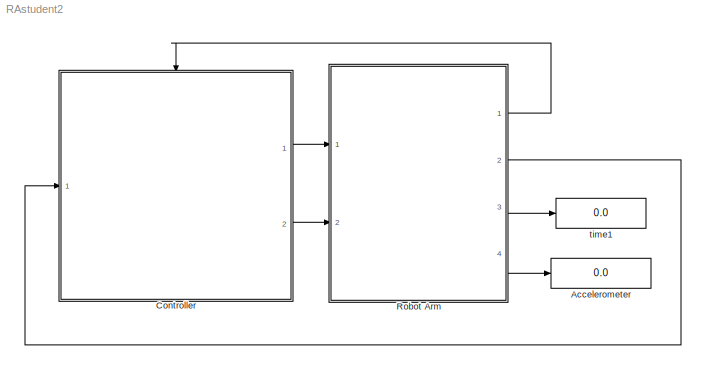
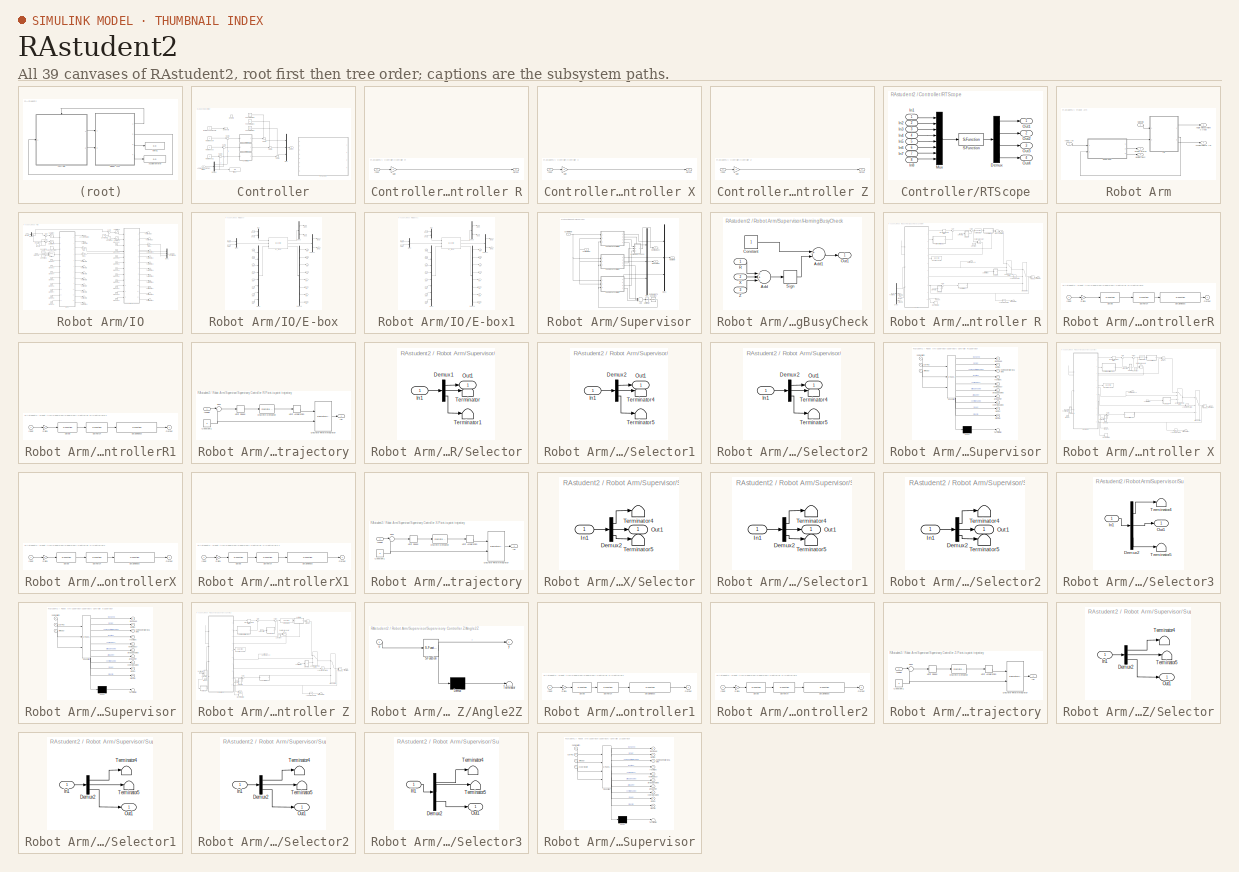
[diagram: thumbnail index - all 39 canvases of the model, root first then tree order]
MODEL RAstudent2
KIND model
BLOCK [Display] Accelerometer
  Decimation = 50
  Ports = [1]
  SID = 2368
BLOCK [SubSystem] Controller
  Ports = [1, 2, 1]
  RequestExecContextInheritance = off
  SID = 2149
  Variant = off
BLOCK [Inport] Controller/Angle Measurements [rad]
  IconDisplay = Port number
  SID = 2150
BLOCK [SubSystem] Controller/Controller R
  Ports = [1, 1]
  RequestExecContextInheritance = off
  SID = 2152
  Variant = off
BLOCK [Gain] Controller/Controller R/Gain
  Gain = 0
  OutDataTypeStr = Inherit: Inherit via internal rule
  ParamDataTypeStr = Inherit: Inherit via internal rule
  SID = 2157
  SaturateOnIntegerOverflow = off
BLOCK [Inport] Controller/Controller R/Input
  IconDisplay = Port number
  SID = 2153
BLOCK [Outport] Controller/Controller R/Output
  IconDisplay = Port number
  SID = 2158
BLOCK [SubSystem] Controller/Controller X
  Ports = [1, 1]
  RequestExecContextInheritance = off
  SID = 2159
  Variant = off
BLOCK [Gain] Controller/Controller X/Gain
  Gain = 0
  OutDataTypeStr = Inherit: Inherit via internal rule
  ParamDataTypeStr = Inherit: Inherit via internal rule
  SID = 2164
  SaturateOnIntegerOverflow = off
BLOCK [Inport] Controller/Controller X/Input
  IconDisplay = Port number
  SID = 2160
BLOCK [Outport] Controller/Controller X/Output
  IconDisplay = Port number
  SID = 2165
BLOCK [SubSystem] Controller/Controller Z
  Ports = [1, 1]
  RequestExecContextInheritance = off
  SID = 2166
  Variant = off
BLOCK [Gain] Controller/Controller Z/Gain
  Gain = 0
  OutDataTypeStr = Inherit: Inherit via internal rule
  ParamDataTypeStr = Inherit: Inherit via internal rule
  SID = 2171
  SaturateOnIntegerOverflow = off
BLOCK [Inport] Controller/Controller Z/Input
  IconDisplay = Port number
  SID = 2167
BLOCK [Outport] Controller/Controller Z/Output
  IconDisplay = Port number
  SID = 2172
BLOCK [Demux] Controller/Demux
  DisplayOption = bar
  Outputs = 3
  Ports = [1, 3]
  SID = 2173
BLOCK [EnablePort] Controller/Enable
  Ports = []
  SID = 2151
BLOCK [Constant] Controller/Feedforward R
  SID = 2194
  Value = 0
BLOCK [Constant] Controller/Feedforward X
  SID = 2196
  Value = 0
BLOCK [Constant] Controller/Feedforward Z
  SID = 2199
  Value = 0.1
BLOCK [Mux] Controller/Mux
  DisplayOption = bar
  Inputs = 3
  Ports = [3, 1]
  SID = 2174
BLOCK [Outport] Controller/Output
  IconDisplay = Port number
  SID = 2175
BLOCK [SubSystem] Controller/RTScope
  OpenFcn = rtscope
  Ports = [8, 4]
  RequestExecContextInheritance = off
  SID = 1201
  Variant = off
BLOCK [Demux] Controller/RTScope/Demux
  Ports = [1, 4]
  SID = 1210
BLOCK [Inport] Controller/RTScope/In1
  IconDisplay = Port number
  SID = 1202
BLOCK [Inport] Controller/RTScope/In2
  IconDisplay = Port number
  Port = 2
  SID = 1203
BLOCK [Inport] Controller/RTScope/In3
  IconDisplay = Port number
  Port = 3
  SID = 1204
BLOCK [Inport] Controller/RTScope/In4
  IconDisplay = Port number
  Port = 4
  SID = 1205
BLOCK [Inport] Controller/RTScope/In5
  IconDisplay = Port number
  Port = 5
  SID = 1206
BLOCK [Inport] Controller/RTScope/In6
  IconDisplay = Port number
  Port = 6
  SID = 1207
BLOCK [Inport] Controller/RTScope/In7
  IconDisplay = Port number
  Port = 7
  SID = 1208
BLOCK [Inport] Controller/RTScope/In8
  IconDisplay = Port number
  Port = 8
  SID = 1209
BLOCK [Mux] Controller/RTScope/Mux
  DisplayOption = bar
  Inputs = 8
  Ports = [8, 1]
  SID = 1211
BLOCK [Outport] Controller/RTScope/Out1
  IconDisplay = Port number
  SID = 1213
BLOCK [Outport] Controller/RTScope/Out2
  IconDisplay = Port number
  Port = 2
  SID = 1214
BLOCK [Outport] Controller/RTScope/Out3
  IconDisplay = Port number
  Port = 3
  SID = 1215
BLOCK [Outport] Controller/RTScope/Out4
  IconDisplay = Port number
  Port = 4
  SID = 1216
BLOCK [S-Function] Controller/RTScope/S-Function
  EnableBusSupport = off
  FunctionName = sf_rt_scope
  Parameters = 4096
  Ports = [1, 1]
  SFunctionDeploymentMode = off
  SID = 1212
BLOCK [Constant] Controller/Reference R
  SID = 2200
  Value = 0
BLOCK [Constant] Controller/Reference Solenoid
  SID = 2204
  Value = 0
BLOCK [Constant] Controller/Reference X
  SID = 2201
  Value = 0
BLOCK [Constant] Controller/Reference Z
  SID = 2202
  Value = 0
BLOCK [Outport] Controller/Solenoid
  IconDisplay = Port number
  InitialOutput = 0
  Port = 2
  SID = 2203
BLOCK [Sum] Controller/Sum1
  IconShape = round
  InputSameDT = off
  Inputs = |+-
  OutDataTypeStr = Inherit: Inherit via internal rule
  Ports = [2, 1]
  SID = 2177
  SaturateOnIntegerOverflow = off
BLOCK [Sum] Controller/Sum2
  IconShape = round
  InputSameDT = off
  Inputs = |+-
  OutDataTypeStr = Inherit: Inherit via internal rule
  Ports = [2, 1]
  SID = 2176
  SaturateOnIntegerOverflow = off
BLOCK [Sum] Controller/Sum3
  IconShape = round
  InputSameDT = off
  Inputs = |+-
  OutDataTypeStr = Inherit: Inherit via internal rule
  Ports = [2, 1]
  SID = 2178
  SaturateOnIntegerOverflow = off
BLOCK [Sum] Controller/Sum4
  IconShape = round
  Inputs = ++|
  Ports = [2, 1]
  SID = 2195
BLOCK [Sum] Controller/Sum5
  IconShape = round
  Inputs = ++|
  Ports = [2, 1]
  SID = 2197
BLOCK [Sum] Controller/Sum6
  IconShape = round
  Inputs = ++|
  Ports = [2, 1]
  SID = 2198
BLOCK [Display] Controller/time2
  Decimation = 50
  Ports = [1]
  SID = 2357
BLOCK [SubSystem] Robot Arm
  Ports = [2, 4]
  RequestExecContextInheritance = off
  SID = 305
  Variant = off
BLOCK [Outport] Robot Arm/Accelerometer [V]
  IconDisplay = Port number
  Port = 4
  SID = 2367
BLOCK [Outport] Robot Arm/Airbag Status
  IconDisplay = Port number
  Port = 3
  SID = 1474
BLOCK [Outport] Robot Arm/Angle measurments [rad]
  IconDisplay = Port number
  Port = 2
  SID = 311
BLOCK [Outport] Robot Arm/Homing Busy
  IconDisplay = Port number
  SID = 1218
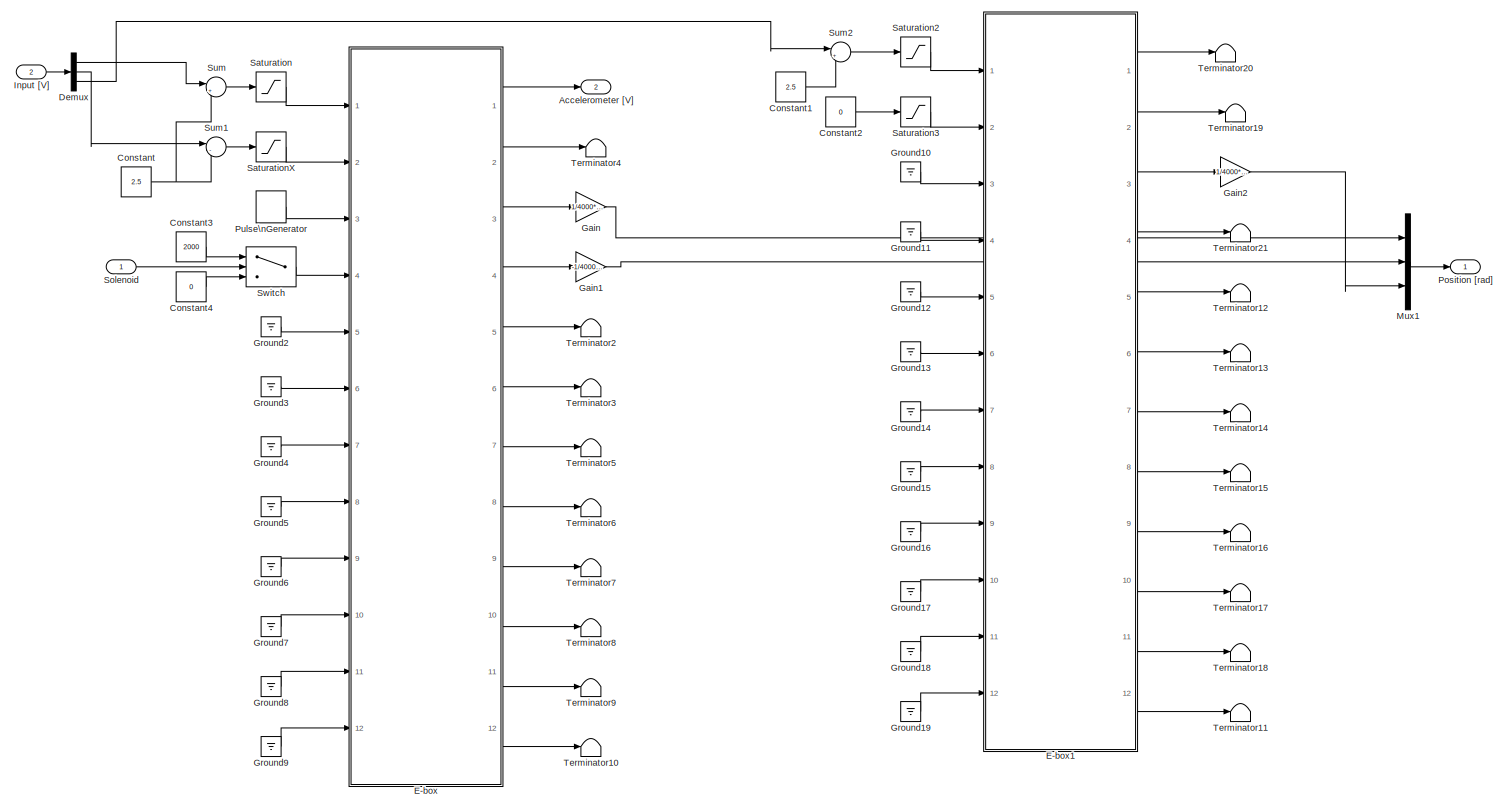
[diagram: Robot Arm/IO - part 1/1, most of the canvas]
BLOCK [SubSystem] Robot Arm/IO
  Ports = [2, 2]
  RequestExecContextInheritance = off
  SID = 458
  Variant = off
BLOCK [Outport] Robot Arm/IO/Accelerometer [V]
  IconDisplay = Port number
  Port = 2
  SID = 2366
BLOCK [Constant] Robot Arm/IO/Constant
  SID = 346
  Value = 2.5
BLOCK [Constant] Robot Arm/IO/Constant1
  SID = 350
  Value = 2.5
BLOCK [Constant] Robot Arm/IO/Constant2
  SID = 314
  Value = 0
BLOCK [Constant] Robot Arm/IO/Constant3
  SID = 1245
  Value = 2000
BLOCK [Constant] Robot Arm/IO/Constant4
  SID = 1246
  Value = 0
BLOCK [Demux] Robot Arm/IO/Demux
  DisplayOption = bar
  Outputs = 3
  Ports = [1, 3]
  SID = 1476
BLOCK [SubSystem] Robot Arm/IO/E-box
  Ports = [12, 12]
  RequestExecContextInheritance = off
  SID = 184
  Variant = off
BLOCK [Outport] Robot Arm/IO/E-box/ADC0
  IconDisplay = Port number
  SID = 204
BLOCK [Outport] Robot Arm/IO/E-box/ADC1
  IconDisplay = Port number
  Port = 2
  SID = 205
BLOCK [Inport] Robot Arm/IO/E-box/DAC0
  IconDisplay = Port number
  SID = 185
BLOCK [Inport] Robot Arm/IO/E-box/DAC1
  IconDisplay = Port number
  Port = 2
  SID = 186
BLOCK [Outport] Robot Arm/IO/E-box/DI0
  IconDisplay = Port number
  Port = 5
  SID = 208
BLOCK [Outport] Robot Arm/IO/E-box/DI1
  IconDisplay = Port number
  Port = 6
  SID = 209
BLOCK [Outport] Robot Arm/IO/E-box/DI2
  IconDisplay = Port number
  Port = 7
  SID = 210
BLOCK [Outport] Robot Arm/IO/E-box/DI3
  IconDisplay = Port number
  Port = 8
  SID = 211
BLOCK [Outport] Robot Arm/IO/E-box/DI4
  IconDisplay = Port number
  Port = 9
  SID = 212
BLOCK [Outport] Robot Arm/IO/E-box/DI5
  IconDisplay = Port number
  Port = 10
  SID = 213
BLOCK [Outport] Robot Arm/IO/E-box/DI6
  IconDisplay = Port number
  Port = 11
  SID = 214
BLOCK [Outport] Robot Arm/IO/E-box/DI7
  IconDisplay = Port number
  Port = 12
  SID = 215
BLOCK [Inport] Robot Arm/IO/E-box/DO0
  IconDisplay = Port number
  Port = 5
  SID = 189
BLOCK [Inport] Robot Arm/IO/E-box/DO1
  IconDisplay = Port number
  Port = 6
  SID = 190
BLOCK [Inport] Robot Arm/IO/E-box/DO2
  IconDisplay = Port number
  Port = 7
  SID = 191
BLOCK [Inport] Robot Arm/IO/E-box/DO3
  IconDisplay = Port number
  Port = 8
  SID = 192
BLOCK [Inport] Robot Arm/IO/E-box/DO4
  IconDisplay = Port number
  Port = 9
  SID = 193
BLOCK [Inport] Robot Arm/IO/E-box/DO5
  IconDisplay = Port number
  Port = 10
  SID = 194
BLOCK [Inport] Robot Arm/IO/E-box/DO6
  IconDisplay = Port number
  Port = 11
  SID = 195
BLOCK [Inport] Robot Arm/IO/E-box/DO7
  IconDisplay = Port number
  Port = 12
  SID = 196
BLOCK [Demux] Robot Arm/IO/E-box/Demux
  DisplayOption = bar
  Outputs = 2
  Ports = [1, 2]
  SID = 197
BLOCK [Demux] Robot Arm/IO/E-box/Demux1
  DisplayOption = bar
  Outputs = 2
  Ports = [1, 2]
  SID = 198
BLOCK [Demux] Robot Arm/IO/E-box/Demux2
  DisplayOption = bar
  Outputs = 8
  Ports = [1, 8]
  SID = 199
BLOCK [Outport] Robot Arm/IO/E-box/ENC0
  IconDisplay = Port number
  Port = 3
  SID = 206
BLOCK [Outport] Robot Arm/IO/E-box/ENC1
  IconDisplay = Port number
  Port = 4
  SID = 207
BLOCK [Mux] Robot Arm/IO/E-box/Mux
  DisplayOption = bar
  Inputs = 2
  Ports = [2, 1]
  SID = 200
BLOCK [Mux] Robot Arm/IO/E-box/Mux1
  DisplayOption = bar
  Inputs = 8
  Ports = [8, 1]
  SID = 201
BLOCK [Mux] Robot Arm/IO/E-box/Mux2
  DisplayOption = bar
  Inputs = 2
  Ports = [2, 1]
  SID = 202
BLOCK [Inport] Robot Arm/IO/E-box/PWM0
  IconDisplay = Port number
  Port = 3
  SID = 187
BLOCK [Inport] Robot Arm/IO/E-box/PWM1
  IconDisplay = Port number
  Port = 4
  SID = 188
BLOCK [S-Function] Robot Arm/IO/E-box/ec_Ebox
  EnableBusSupport = off
  FunctionName = ec_Ebox
  Parameters = link_id
  Ports = [3, 3]
  SFunctionDeploymentMode = off
  SID = 203
BLOCK [SubSystem] Robot Arm/IO/E-box1
  Ports = [12, 12]
  RequestExecContextInheritance = off
  SID = 216
  Variant = off
BLOCK [Outport] Robot Arm/IO/E-box1/ADC0
  IconDisplay = Port number
  SID = 236
BLOCK [Outport] Robot Arm/IO/E-box1/ADC1
  IconDisplay = Port number
  Port = 2
  SID = 237
BLOCK [Inport] Robot Arm/IO/E-box1/DAC0
  IconDisplay = Port number
  SID = 217
BLOCK [Inport] Robot Arm/IO/E-box1/DAC1
  IconDisplay = Port number
  Port = 2
  SID = 218
BLOCK [Outport] Robot Arm/IO/E-box1/DI0
  IconDisplay = Port number
  Port = 5
  SID = 240
BLOCK [Outport] Robot Arm/IO/E-box1/DI1
  IconDisplay = Port number
  Port = 6
  SID = 241
BLOCK [Outport] Robot Arm/IO/E-box1/DI2
  IconDisplay = Port number
  Port = 7
  SID = 242
BLOCK [Outport] Robot Arm/IO/E-box1/DI3
  IconDisplay = Port number
  Port = 8
  SID = 243
BLOCK [Outport] Robot Arm/IO/E-box1/DI4
  IconDisplay = Port number
  Port = 9
  SID = 244
BLOCK [Outport] Robot Arm/IO/E-box1/DI5
  IconDisplay = Port number
  Port = 10
  SID = 245
BLOCK [Outport] Robot Arm/IO/E-box1/DI6
  IconDisplay = Port number
  Port = 11
  SID = 246
BLOCK [Outport] Robot Arm/IO/E-box1/DI7
  IconDisplay = Port number
  Port = 12
  SID = 247
BLOCK [Inport] Robot Arm/IO/E-box1/DO0
  IconDisplay = Port number
  Port = 5
  SID = 221
BLOCK [Inport] Robot Arm/IO/E-box1/DO1
  IconDisplay = Port number
  Port = 6
  SID = 222
BLOCK [Inport] Robot Arm/IO/E-box1/DO2
  IconDisplay = Port number
  Port = 7
  SID = 223
BLOCK [Inport] Robot Arm/IO/E-box1/DO3
  IconDisplay = Port number
  Port = 8
  SID = 224
BLOCK [Inport] Robot Arm/IO/E-box1/DO4
  IconDisplay = Port number
  Port = 9
  SID = 225
BLOCK [Inport] Robot Arm/IO/E-box1/DO5
  IconDisplay = Port number
  Port = 10
  SID = 226
BLOCK [Inport] Robot Arm/IO/E-box1/DO6
  IconDisplay = Port number
  Port = 11
  SID = 227
BLOCK [Inport] Robot Arm/IO/E-box1/DO7
  IconDisplay = Port number
  Port = 12
  SID = 228
BLOCK [Demux] Robot Arm/IO/E-box1/Demux
  DisplayOption = bar
  Outputs = 2
  Ports = [1, 2]
  SID = 229
BLOCK [Demux] Robot Arm/IO/E-box1/Demux1
  DisplayOption = bar
  Outputs = 2
  Ports = [1, 2]
  SID = 230
BLOCK [Demux] Robot Arm/IO/E-box1/Demux2
  DisplayOption = bar
  Outputs = 8
  Ports = [1, 8]
  SID = 231
BLOCK [Outport] Robot Arm/IO/E-box1/ENC0
  IconDisplay = Port number
  Port = 3
  SID = 238
BLOCK [Outport] Robot Arm/IO/E-box1/ENC1
  IconDisplay = Port number
  Port = 4
  SID = 239
BLOCK [Mux] Robot Arm/IO/E-box1/Mux
  DisplayOption = bar
  Inputs = 2
  Ports = [2, 1]
  SID = 232
BLOCK [Mux] Robot Arm/IO/E-box1/Mux1
  DisplayOption = bar
  Inputs = 8
  Ports = [8, 1]
  SID = 233
BLOCK [Mux] Robot Arm/IO/E-box1/Mux2
  DisplayOption = bar
  Inputs = 2
  Ports = [2, 1]
  SID = 234
BLOCK [Inport] Robot Arm/IO/E-box1/PWM0
  IconDisplay = Port number
  Port = 3
  SID = 219
BLOCK [Inport] Robot Arm/IO/E-box1/PWM1
  IconDisplay = Port number
  Port = 4
  SID = 220
BLOCK [S-Function] Robot Arm/IO/E-box1/ec_Ebox
  EnableBusSupport = off
  FunctionName = ec_Ebox
  Parameters = link_id
  Ports = [3, 3]
  SFunctionDeploymentMode = off
  SID = 235
BLOCK [Gain] Robot Arm/IO/Gain
  Gain = 1/4000*9/150*2*pi
  OutDataTypeStr = Inherit: Inherit via internal rule
  ParamDataTypeStr = Inherit: Inherit via internal rule
  SID = 248
  SaturateOnIntegerOverflow = off
BLOCK [Gain] Robot Arm/IO/Gain1
  Gain = -1/4000*9/100*2*pi
  OutDataTypeStr = Inherit: Inherit via internal rule
  ParamDataTypeStr = Inherit: Inherit via internal rule
  SID = 251
  SaturateOnIntegerOverflow = off
BLOCK [Gain] Robot Arm/IO/Gain2
  Gain = 1/4000*9/100*2*pi
  OutDataTypeStr = Inherit: Inherit via internal rule
  ParamDataTypeStr = Inherit: Inherit via internal rule
  SID = 253
  SaturateOnIntegerOverflow = off
BLOCK [Ground] Robot Arm/IO/Ground10
  SID = 270
BLOCK [Ground] Robot Arm/IO/Ground11
  SID = 271
BLOCK [Ground] Robot Arm/IO/Ground12
  SID = 272
BLOCK [Ground] Robot Arm/IO/Ground13
  SID = 273
BLOCK [Ground] Robot Arm/IO/Ground14
  SID = 274
BLOCK [Ground] Robot Arm/IO/Ground15
  SID = 275
BLOCK [Ground] Robot Arm/IO/Ground16
  SID = 276
BLOCK [Ground] Robot Arm/IO/Ground17
  SID = 277
BLOCK [Ground] Robot Arm/IO/Ground18
  SID = 278
BLOCK [Ground] Robot Arm/IO/Ground19
  SID = 279
BLOCK [Ground] Robot Arm/IO/Ground2
  SID = 261
BLOCK [Ground] Robot Arm/IO/Ground3
  SID = 262
BLOCK [Ground] Robot Arm/IO/Ground4
  SID = 263
BLOCK [Ground] Robot Arm/IO/Ground5
  SID = 264
BLOCK [Ground] Robot Arm/IO/Ground6
  SID = 265
BLOCK [Ground] Robot Arm/IO/Ground7
  SID = 267
BLOCK [Ground] Robot Arm/IO/Ground8
  SID = 268
BLOCK [Ground] Robot Arm/IO/Ground9
  SID = 269
BLOCK [Inport] Robot Arm/IO/Input [V]
  IconDisplay = Port number
  Port = 2
  SID = 1477
BLOCK [Mux] Robot Arm/IO/Mux1
  DisplayOption = bar
  Inputs = 3
  Ports = [3, 1]
  SID = 2143
BLOCK [Outport] Robot Arm/IO/Position [rad]
  IconDisplay = Port number
  SID = 461
BLOCK [DiscretePulseGenerator] Robot Arm/IO/Pulse\nGenerator
  Amplitude = 2000
  Period = 1/1024
  Ports = [0, 1]
  PulseType = Time based
  PulseWidth = 50
  SID = 1241
BLOCK [Saturate] Robot Arm/IO/Saturation
  InputPortMap = u0
  LowerLimit = 0
  Ports = [1, 1]
  SID = 254
  UpperLimit = 5
BLOCK [Saturate] Robot Arm/IO/Saturation2
  InputPortMap = u0
  LowerLimit = 0
  Ports = [1, 1]
  SID = 257
  UpperLimit = 5
BLOCK [Saturate] Robot Arm/IO/Saturation3
  InputPortMap = u0
  LowerLimit = 0
  Ports = [1, 1]
  SID = 258
  UpperLimit = 5
BLOCK [Saturate] Robot Arm/IO/SaturationX
  InputPortMap = u0
  LowerLimit = 0
  Ports = [1, 1]
  SID = 255
  UpperLimit = 5
BLOCK [Inport] Robot Arm/IO/Solenoid
  IconDisplay = Port number
  SID = 1242
BLOCK [Sum] Robot Arm/IO/Sum
  IconShape = round
  InputSameDT = off
  Inputs = |++
  OutDataTypeStr = Inherit: Inherit via internal rule
  Ports = [2, 1]
  SID = 345
  SaturateOnIntegerOverflow = off
BLOCK [Sum] Robot Arm/IO/Sum1
  IconShape = round
  InputSameDT = off
  Inputs = |-+
  OutDataTypeStr = Inherit: Inherit via internal rule
  Ports = [2, 1]
  SID = 347
  SaturateOnIntegerOverflow = off
BLOCK [Sum] Robot Arm/IO/Sum2
  IconShape = round
  InputSameDT = off
  Inputs = |++
  OutDataTypeStr = Inherit: Inherit via internal rule
  Ports = [2, 1]
  SID = 348
  SaturateOnIntegerOverflow = off
BLOCK [Switch] Robot Arm/IO/Switch
  InputSameDT = off
  SID = 1244
  SaturateOnIntegerOverflow = off
  Threshold = .5
BLOCK [Terminator] Robot Arm/IO/Terminator10
  SID = 289
BLOCK [Terminator] Robot Arm/IO/Terminator11
  SID = 290
BLOCK [Terminator] Robot Arm/IO/Terminator12
  SID = 291
BLOCK [Terminator] Robot Arm/IO/Terminator13
  SID = 292
BLOCK [Terminator] Robot Arm/IO/Terminator14
  SID = 293
BLOCK [Terminator] Robot Arm/IO/Terminator15
  SID = 294
BLOCK [Terminator] Robot Arm/IO/Terminator16
  SID = 295
BLOCK [Terminator] Robot Arm/IO/Terminator17
  SID = 296
BLOCK [Terminator] Robot Arm/IO/Terminator18
  SID = 297
BLOCK [Terminator] Robot Arm/IO/Terminator19
  SID = 298
BLOCK [Terminator] Robot Arm/IO/Terminator2
  SID = 282
BLOCK [Terminator] Robot Arm/IO/Terminator20
  SID = 470
BLOCK [Terminator] Robot Arm/IO/Terminator21
  SID = 300
BLOCK [Terminator] Robot Arm/IO/Terminator3
  SID = 283
BLOCK [Terminator] Robot Arm/IO/Terminator4
  SID = 469
BLOCK [Terminator] Robot Arm/IO/Terminator5
  SID = 284
BLOCK [Terminator] Robot Arm/IO/Terminator6
  SID = 285
BLOCK [Terminator] Robot Arm/IO/Terminator7
  SID = 286
BLOCK [Terminator] Robot Arm/IO/Terminator8
  SID = 287
BLOCK [Terminator] Robot Arm/IO/Terminator9
  SID = 288
BLOCK [Inport] Robot Arm/Input [V]
  IconDisplay = Port number
  SID = 306
BLOCK [Inport] Robot Arm/Solenoid
  IconDisplay = Port number
  Port = 2
  SID = 1247
BLOCK [SubSystem] Robot Arm/Supervisor
  Ports = [2, 3]
  RequestExecContextInheritance = off
  SID = 1922
  Variant = off
BLOCK [Sum] Robot Arm/Supervisor/Add
  InputSameDT = off
  Inputs = +++
  OutDataTypeStr = Inherit: Inherit via internal rule
  Ports = [3, 1]
  SID = 2336
  SaturateOnIntegerOverflow = off
BLOCK [Outport] Robot Arm/Supervisor/Airbag Status
  IconDisplay = Port number
  Port = 2
  SID = 2141
BLOCK [Reference] Robot Arm/Supervisor/Compare\nTo Constant  REF=simulink/Logic and Bit\nOperations/Compare\nTo Constant
  OutDataTypeStr = boolean
  Ports = [1, 1]
  SID = 2337
  SourceBlock = simulink/Logic and Bit\nOperations/Compare\nTo Constant
  SourceType = Compare To Constant
  ZeroCross = on
  const = 3
  relop = ==
BLOCK [Inport] Robot Arm/Supervisor/Controller [Nm]
  IconDisplay = Port number
  SID = 1923
BLOCK [Outport] Robot Arm/Supervisor/HomingBusy
  IconDisplay = Port number
  Port = 3
  SID = 2142
BLOCK [SubSystem] Robot Arm/Supervisor/HomingBusyCheck
  Ports = [3, 1]
  RequestExecContextInheritance = off
  SID = 1926
  Variant = off
BLOCK [Sum] Robot Arm/Supervisor/HomingBusyCheck/Add
  InputSameDT = off
  Inputs = +++
  OutDataTypeStr = Inherit: Inherit via internal rule
  Ports = [3, 1]
  SID = 1930
  SaturateOnIntegerOverflow = off
BLOCK [Sum] Robot Arm/Supervisor/HomingBusyCheck/Add1
  InputSameDT = off
  Inputs = +-
  OutDataTypeStr = Inherit: Inherit via internal rule
  Ports = [2, 1]
  SID = 1931
  SaturateOnIntegerOverflow = off
BLOCK [Constant] Robot Arm/Supervisor/HomingBusyCheck/Constant
  SID = 1932
BLOCK [Outport] Robot Arm/Supervisor/HomingBusyCheck/Out1
  IconDisplay = Port number
  SID = 1934
BLOCK [Inport] Robot Arm/Supervisor/HomingBusyCheck/R
  IconDisplay = Port number
  SID = 1927
BLOCK [Signum] Robot Arm/Supervisor/HomingBusyCheck/Sign
  SID = 1933
BLOCK [Inport] Robot Arm/Supervisor/HomingBusyCheck/X
  IconDisplay = Port number
  Port = 2
  SID = 1928
BLOCK [Inport] Robot Arm/Supervisor/HomingBusyCheck/Z
  IconDisplay = Port number
  Port = 3
  SID = 1929
BLOCK [Outport] Robot Arm/Supervisor/Motor [Nm]
  IconDisplay = Port number
  SID = 2140
BLOCK [Mux] Robot Arm/Supervisor/Mux
  DisplayOption = bar
  Inputs = 3
  Ports = [3, 1]
  SID = 1935
BLOCK [Mux] Robot Arm/Supervisor/Mux1
  DisplayOption = bar
  Inputs = 3
  Ports = [3, 1]
  SID = 1936
BLOCK [Inport] Robot Arm/Supervisor/Position [rad]
  IconDisplay = Port number
  Port = 2
  SID = 1925
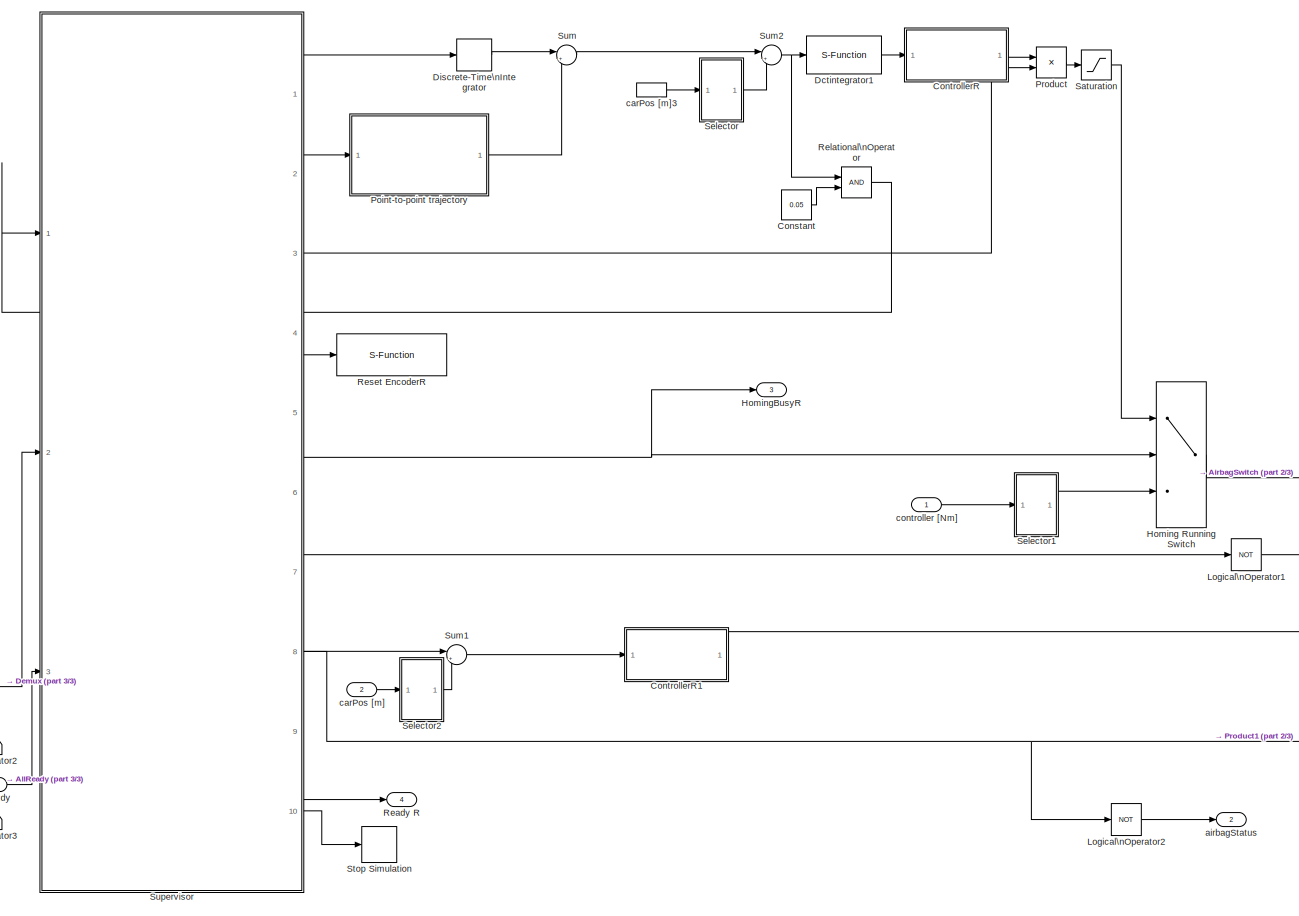
[diagram: Robot Arm/Supervisor/Supervisory Controller R - part 1/3, most of the canvas]
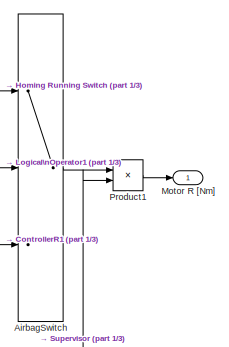
[diagram: Robot Arm/Supervisor/Supervisory Controller R - part 2/3, middle right region]
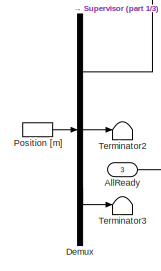
[diagram: Robot Arm/Supervisor/Supervisory Controller R - part 3/3, bottom left region]
BLOCK [SubSystem] Robot Arm/Supervisor/Supervisory Controller R
  Ports = [3, 4]
  RequestExecContextInheritance = off
  SID = 1937
  Variant = off
BLOCK [Switch] Robot Arm/Supervisor/Supervisory Controller R/AirbagSwitch
  InputSameDT = off
  SID = 1941
  SaturateOnIntegerOverflow = off
  Threshold = 0.5
BLOCK [Inport] Robot Arm/Supervisor/Supervisory Controller R/AllReady
  IconDisplay = Port number
  Port = 3
  SID = 2330
BLOCK [Constant] Robot Arm/Supervisor/Supervisory Controller R/Constant
  SID = 2144
  Value = 0.05
BLOCK [SubSystem] Robot Arm/Supervisor/Supervisory Controller R/ControllerR
  Ports = [1, 1]
  RequestExecContextInheritance = off
  SID = 1942
  Variant = off
BLOCK [S-Function] Robot Arm/Supervisor/Supervisory Controller R/ControllerR/Dct2lowpass
  EnableBusSupport = off
  FunctionName = dlowpass2
  Parameters = f_den, b_den, 0.001
  Ports = [1, 1]
  SFunctionDeploymentMode = off
  SID = 2374
BLOCK [S-Function] Robot Arm/Supervisor/Supervisory Controller R/ControllerR/Dctnotch
  EnableBusSupport = off
  FunctionName = dnotch
  Parameters = f_num, b_num, f_den, b_den, 0.001
  Ports = [1, 1]
  SFunctionDeploymentMode = off
  SID = 2373
BLOCK [S-Function] Robot Arm/Supervisor/Supervisory Controller R/ControllerR/Dctpd
  EnableBusSupport = off
  FunctionName = dpd
  Parameters = kp, kv, 0.001
  Ports = [1, 1]
  SFunctionDeploymentMode = off
  SID = 2372
BLOCK [Gain] Robot Arm/Supervisor/Supervisory Controller R/ControllerR/Gain1
  SID = 1947
BLOCK [Inport] Robot Arm/Supervisor/Supervisory Controller R/ControllerR/Input
  IconDisplay = Port number
  SID = 1943
BLOCK [Outport] Robot Arm/Supervisor/Supervisory Controller R/ControllerR/Output
  IconDisplay = Port number
  SID = 1948
BLOCK [SubSystem] Robot Arm/Supervisor/Supervisory Controller R/ControllerR1
  Ports = [1, 1]
  RequestExecContextInheritance = off
  SID = 1949
  Variant = off
BLOCK [S-Function] Robot Arm/Supervisor/Supervisory Controller R/ControllerR1/Dct2lowpass
  EnableBusSupport = off
  FunctionName = dlowpass2
  Parameters = f_den, b_den, 0.001
  Ports = [1, 1]
  SFunctionDeploymentMode = off
  SID = 2379
BLOCK [S-Function] Robot Arm/Supervisor/Supervisory Controller R/ControllerR1/Dctnotch
  EnableBusSupport = off
  FunctionName = dnotch
  Parameters = f_num, b_num, f_den, b_den, 0.001
  Ports = [1, 1]
  SFunctionDeploymentMode = off
  SID = 2378
BLOCK [S-Function] Robot Arm/Supervisor/Supervisory Controller R/ControllerR1/Dctpd
  EnableBusSupport = off
  FunctionName = dpd
  Parameters = kp, kv, 0.001
  Ports = [1, 1]
  SFunctionDeploymentMode = off
  SID = 2377
BLOCK [Gain] Robot Arm/Supervisor/Supervisory Controller R/ControllerR1/Gain1
  SID = 1954
BLOCK [Inport] Robot Arm/Supervisor/Supervisory Controller R/ControllerR1/Input
  IconDisplay = Port number
  SID = 1950
BLOCK [Outport] Robot Arm/Supervisor/Supervisory Controller R/ControllerR1/Output
  IconDisplay = Port number
  SID = 1955
BLOCK [S-Function] Robot Arm/Supervisor/Supervisory Controller R/Dctintegrator1
  EnableBusSupport = off
  FunctionName = dweakint
  Parameters = f_num, 0.001
  Ports = [1, 1]
  SFunctionDeploymentMode = off
  SID = 2375
BLOCK [Demux] Robot Arm/Supervisor/Supervisory Controller R/Demux
  DisplayOption = bar
  Outputs = 3
  Ports = [1, 3]
  SID = 1956
BLOCK [DiscreteIntegrator] Robot Arm/Supervisor/Supervisory Controller R/Discrete-Time\nIntegrator
  ICPrevOutput = DiscIntNeverNeededParam
  ICPrevScaledInput = DiscIntNeverNeededParam
  Ports = [1, 1]
  SID = 1957
  SampleTime = -1
BLOCK [Switch] Robot Arm/Supervisor/Supervisory Controller R/Homing Running Switch
  InputSameDT = off
  SID = 1958
  SaturateOnIntegerOverflow = off
  Threshold = 0.5
BLOCK [Outport] Robot Arm/Supervisor/Supervisory Controller R/HomingBusyR
  IconDisplay = Port number
  Port = 3
  SID = 2001
BLOCK [Logic] Robot Arm/Supervisor/Supervisory Controller R/Logical\nOperator1
  AllPortsSameDT = off
  Operator = NOT
  OutDataTypeStr = boolean
  Ports = [1, 1]
  SID = 1959
BLOCK [Logic] Robot Arm/Supervisor/Supervisory Controller R/Logical\nOperator2
  AllPortsSameDT = off
  Operator = NOT
  OutDataTypeStr = boolean
  Ports = [1, 1]
  SID = 1960
BLOCK [Outport] Robot Arm/Supervisor/Supervisory Controller R/Motor R [Nm]
  IconDisplay = Port number
  SID = 1999
BLOCK [SubSystem] Robot Arm/Supervisor/Supervisory Controller R/Point-to-point trajectory
  Ports = [1, 1]
  RequestExecContextInheritance = off
  SID = 1961
  Variant = off
BLOCK [Constant] Robot Arm/Supervisor/Supervisory Controller R/Point-to-point trajectory/Constant1
  SID = 1963
  Value = 0
BLOCK [Reference] Robot Arm/Supervisor/Supervisory Controller R/Point-to-point trajectory/Discrete Derivative  REF=simulink/Discrete/Discrete Derivative
  DoSatur = off
  ICPrevScaledInput = 0.0
  InputProcessing = Inherited
  LockScale = off
  OutDataType = fixdt(1, 16)
  OutDataTypeStr = Inherit: Inherit via internal rule
  OutMax = []
  OutMin = []
  OutScaling = 2^-10
  OutputDataTypeScalingMode = Inherit via internal rule
  Ports = [1, 1]
  RndMeth = Floor
  SID = 1964
  SourceBlock = simulink/Discrete/Discrete Derivative
  SourceType = Discrete Derivative
  gainval = 1.0
BLOCK [DiscreteIntegrator] Robot Arm/Supervisor/Supervisory Controller R/Point-to-point trajectory/Discrete-Time\nIntegrator
  ICPrevOutput = DiscIntNeverNeededParam
  ICPrevScaledInput = DiscIntNeverNeededParam
  InitialConditionSource = external
  Ports = [2, 1]
  SID = 1965
  SampleTime = -1
BLOCK [RateLimiter] Robot Arm/Supervisor/Supervisory Controller R/Point-to-point trajectory/Limit Acceleration
  FallingSlewLimit = -0.5
  RisingSlewLimit = 0.5
  SID = 1966
  SampleTimeMode = inherited
BLOCK [RateLimiter] Robot Arm/Supervisor/Supervisory Controller R/Point-to-point trajectory/Limit Speed
  FallingSlewLimit = -0.4
  RisingSlewLimit = 0.4
  SID = 1967
  SampleTimeMode = inherited
BLOCK [Sum] Robot Arm/Supervisor/Supervisory Controller R/Point-to-point trajectory/Sum
  IconShape = round
  InputSameDT = off
  Inputs = |++
  OutDataTypeStr = Inherit: Inherit via internal rule
  Ports = [2, 1]
  SID = 1968
  SaturateOnIntegerOverflow = off
BLOCK [Outport] Robot Arm/Supervisor/Supervisory Controller R/Point-to-point trajectory/ref
  IconDisplay = Port number
  SID = 1969
BLOCK [Inport] Robot Arm/Supervisor/Supervisory Controller R/Point-to-point trajectory/toPoint
  IconDisplay = Port number
  SID = 1962
BLOCK [InportShadow] Robot Arm/Supervisor/Supervisory Controller R/Position [m]
  IconDisplay = Port number
  Port = 2
  SID = 1970
BLOCK [Product] Robot Arm/Supervisor/Supervisory Controller R/Product
  InputSameDT = off
  OutDataTypeStr = Inherit: Inherit via internal rule
  Ports = [2, 1]
  SID = 1971
  SaturateOnIntegerOverflow = off
BLOCK [Product] Robot Arm/Supervisor/Supervisory Controller R/Product1
  InputSameDT = off
  OutDataTypeStr = Inherit: Inherit via internal rule
  Ports = [2, 1]
  SID = 1972
  SaturateOnIntegerOverflow = off
BLOCK [Outport] Robot Arm/Supervisor/Supervisory Controller R/Ready R
  IconDisplay = Port number
  Port = 4
  SID = 2329
BLOCK [RelationalOperator] Robot Arm/Supervisor/Supervisory Controller R/Relational\nOperator
  InputSameDT = off
  OutDataTypeStr = boolean
  Ports = [2, 1]
  SID = 2145
BLOCK [S-Function] Robot Arm/Supervisor/Supervisory Controller R/Reset EncoderR
  EnableBusSupport = off
  FunctionName = ec_EboxResetEnc
  Parameters = link_id, chan_id
  Ports = [1]
  SFunctionDeploymentMode = off
  SID = 2146
BLOCK [Saturate] Robot Arm/Supervisor/Supervisory Controller R/Saturation
  InputPortMap = u0
  LowerLimit = -0.7
  Ports = [1, 1]
  SID = 2359
  UpperLimit = 0.7
BLOCK [SubSystem] Robot Arm/Supervisor/Supervisory Controller R/Selector
  Ports = [1, 1]
  RequestExecContextInheritance = off
  SID = 1974
  Variant = off
BLOCK [Demux] Robot Arm/Supervisor/Supervisory Controller R/Selector/Demux1
  DisplayOption = bar
  Outputs = 3
  Ports = [1, 3]
  SID = 1976
BLOCK [Inport] Robot Arm/Supervisor/Supervisory Controller R/Selector/In1
  IconDisplay = Port number
  SID = 1975
BLOCK [Outport] Robot Arm/Supervisor/Supervisory Controller R/Selector/Out1
  IconDisplay = Port number
  SID = 1979
BLOCK [Terminator] Robot Arm/Supervisor/Supervisory Controller R/Selector/Terminator
  SID = 1977
BLOCK [Terminator] Robot Arm/Supervisor/Supervisory Controller R/Selector/Terminator1
  SID = 1978
BLOCK [SubSystem] Robot Arm/Supervisor/Supervisory Controller R/Selector1
  Ports = [1, 1]
  RequestExecContextInheritance = off
  SID = 1980
  Variant = off
BLOCK [Demux] Robot Arm/Supervisor/Supervisory Controller R/Selector1/Demux2
  DisplayOption = bar
  Outputs = 3
  Ports = [1, 3]
  SID = 1982
BLOCK [Inport] Robot Arm/Supervisor/Supervisory Controller R/Selector1/In1
  IconDisplay = Port number
  SID = 1981
BLOCK [Outport] Robot Arm/Supervisor/Supervisory Controller R/Selector1/Out1
  IconDisplay = Port number
  SID = 1985
BLOCK [Terminator] Robot Arm/Supervisor/Supervisory Controller R/Selector1/Terminator4
  SID = 1983
BLOCK [Terminator] Robot Arm/Supervisor/Supervisory Controller R/Selector1/Terminator5
  SID = 1984
BLOCK [SubSystem] Robot Arm/Supervisor/Supervisory Controller R/Selector2
  Ports = [1, 1]
  RequestExecContextInheritance = off
  SID = 1986
  Variant = off
BLOCK [Demux] Robot Arm/Supervisor/Supervisory Controller R/Selector2/Demux2
  DisplayOption = bar
  Outputs = 3
  Ports = [1, 3]
  SID = 1988
BLOCK [Inport] Robot Arm/Supervisor/Supervisory Controller R/Selector2/In1
  IconDisplay = Port number
  SID = 1987
BLOCK [Outport] Robot Arm/Supervisor/Supervisory Controller R/Selector2/Out1
  IconDisplay = Port number
  SID = 1991
BLOCK [Terminator] Robot Arm/Supervisor/Supervisory Controller R/Selector2/Terminator4
  SID = 1989
BLOCK [Terminator] Robot Arm/Supervisor/Supervisory Controller R/Selector2/Terminator5
  SID = 1990
BLOCK [Stop] Robot Arm/Supervisor/Supervisory Controller R/Stop Simulation
  SID = 2346
BLOCK [Sum] Robot Arm/Supervisor/Supervisory Controller R/Sum
  IconShape = round
  InputSameDT = off
  Inputs = |++
  OutDataTypeStr = Inherit: Inherit via internal rule
  Ports = [2, 1]
  SID = 1992
  SaturateOnIntegerOverflow = off
BLOCK [Sum] Robot Arm/Supervisor/Supervisory Controller R/Sum1
  IconShape = round
  InputSameDT = off
  Inputs = |+-
  OutDataTypeStr = Inherit: Inherit via internal rule
  Ports = [2, 1]
  SID = 1993
  SaturateOnIntegerOverflow = off
BLOCK [Sum] Robot Arm/Supervisor/Supervisory Controller R/Sum2
  IconShape = round
  InputSameDT = off
  Inputs = |+-
  OutDataTypeStr = Inherit: Inherit via internal rule
  Ports = [2, 1]
  SID = 1994
  SaturateOnIntegerOverflow = off
BLOCK [SubSystem] Robot Arm/Supervisor/Supervisory Controller R/Supervisor
  ErrorFcn = Stateflow.Translate.translate
  PermitHierarchicalResolution = ExplicitOnly
  Ports = [3, 10]
  RequestExecContextInheritance = off
  SFBlockType = Chart
  SID = 1995
  TreatAsAtomicUnit = on
  Variant = off
BLOCK [Demux] Robot Arm/Supervisor/Supervisory Controller R/Supervisor/ Demux 
  Outputs = 1
  Ports = [1, 1]
  SID = 1995::44
BLOCK [S-Function] Robot Arm/Supervisor/Supervisory Controller R/Supervisor/ SFunction 
  EnableBusSupport = off
  FunctionName = sf_sfun
  PortCounts = [3 11]
  Ports = [3, 11]
  SFunctionDeploymentMode = off
  SID = 1995::43
  Tag = Stateflow S-Function RAstudent2 5
BLOCK [Terminator] Robot Arm/Supervisor/Supervisory Controller R/Supervisor/ Terminator 
  SID = 1995::45
BLOCK [Inport] Robot Arm/Supervisor/Supervisory Controller R/Supervisor/AllReady
  IconDisplay = Port number
  Port = 3
  SID = 1995::41
BLOCK [Outport] Robot Arm/Supervisor/Supervisory Controller R/Supervisor/Ready
  IconDisplay = Port number
  Port = 9
  SID = 1995::40
BLOCK [Outport] Robot Arm/Supervisor/Supervisory Controller R/Supervisor/StopSim
  IconDisplay = Port number
  Port = 10
  SID = 1995::42
BLOCK [Outport] Robot Arm/Supervisor/Supervisory Controller R/Supervisor/airBagEnabled
  IconDisplay = Port number
  Port = 6
  SID = 1995::37
BLOCK [Outport] Robot Arm/Supervisor/Supervisory Controller R/Supervisor/airBagRef
  IconDisplay = Port number
  Port = 7
  SID = 1995::38
BLOCK [Inport] Robot Arm/Supervisor/Supervisory Controller R/Supervisor/carPos
  IconDisplay = Port number
  Port = 2
  SID = 1995::36
BLOCK [Outport] Robot Arm/Supervisor/Supervisory Controller R/Supervisor/controlEnabled
  IconDisplay = Port number
  Port = 8
  SID = 1995::39
BLOCK [Outport] Robot Arm/Supervisor/Supervisory Controller R/Supervisor/homeControllerEnabled
  IconDisplay = Port number
  Port = 3
  SID = 1995::34
BLOCK [Inport] Robot Arm/Supervisor/Supervisory Controller R/Supervisor/homeSwitch
  IconDisplay = Port number
  SID = 1995::28
BLOCK [Outport] Robot Arm/Supervisor/Supervisory Controller R/Supervisor/homingBusy
  IconDisplay = Port number
  Port = 5
  SID = 1995::26
BLOCK [Outport] Robot Arm/Supervisor/Supervisory Controller R/Supervisor/jogSpeed
  IconDisplay = Port number
  SID = 1995::25
BLOCK [Outport] Robot Arm/Supervisor/Supervisory Controller R/Supervisor/resetEnc
  IconDisplay = Port number
  Port = 4
  SID = 1995::35
BLOCK [Outport] Robot Arm/Supervisor/Supervisory Controller R/Supervisor/toPoint
  IconDisplay = Port number
  Port = 2
  SID = 1995::30
BLOCK [Terminator] Robot Arm/Supervisor/Supervisory Controller R/Terminator2
  SID = 1996
BLOCK [Terminator] Robot Arm/Supervisor/Supervisory Controller R/Terminator3
  SID = 1997
BLOCK [Outport] Robot Arm/Supervisor/Supervisory Controller R/airbagStatus
  IconDisplay = Port number
  Port = 2
  SID = 2000
BLOCK [Inport] Robot Arm/Supervisor/Supervisory Controller R/carPos [m]
  IconDisplay = Port number
  Port = 2
  SID = 1939
BLOCK [InportShadow] Robot Arm/Supervisor/Supervisory Controller R/carPos [m]3
  IconDisplay = Port number
  Port = 2
  SID = 1998
BLOCK [Inport] Robot Arm/Supervisor/Supervisory Controller R/controller [Nm]
  IconDisplay = Port number
  SID = 1938
BLOCK [SubSystem] Robot Arm/Supervisor/Supervisory Controller X
  Ports = [3, 4]
  RequestExecContextInheritance = off
  SID = 2002
  Variant = off
BLOCK [Switch] Robot Arm/Supervisor/Supervisory Controller X/AirbagSwitch
  InputSameDT = off
  SID = 2005
  SaturateOnIntegerOverflow = off
  Threshold = 0.5
BLOCK [Inport] Robot Arm/Supervisor/Supervisory Controller X/AllReady
  IconDisplay = Port number
  Port = 3
  SID = 2331
BLOCK [Constant] Robot Arm/Supervisor/Supervisory Controller X/Constant
  SID = 2006
  Value = -0.1
BLOCK [SubSystem] Robot Arm/Supervisor/Supervisory Controller X/ControllerX
  Ports = [1, 1]
  RequestExecContextInheritance = off
  SID = 2007
  Variant = off
BLOCK [S-Function] Robot Arm/Supervisor/Supervisory Controller X/ControllerX/Dct2lowpass
  EnableBusSupport = off
  FunctionName = dlowpass2
  Parameters = f_den, b_den, 0.001
  Ports = [1, 1]
  SFunctionDeploymentMode = off
  SID = 2382
BLOCK [S-Function] Robot Arm/Supervisor/Supervisory Controller X/ControllerX/Dctnotch
  EnableBusSupport = off
  FunctionName = dnotch
  Parameters = f_num, b_num, f_den, b_den, 0.001
  Ports = [1, 1]
  SFunctionDeploymentMode = off
  SID = 2381
BLOCK [S-Function] Robot Arm/Supervisor/Supervisory Controller X/ControllerX/Dctpd
  EnableBusSupport = off
  FunctionName = dpd
  Parameters = kp, kv, 0.001
  Ports = [1, 1]
  SFunctionDeploymentMode = off
  SID = 2380
BLOCK [Gain] Robot Arm/Supervisor/Supervisory Controller X/ControllerX/Gain1
  SID = 2012
BLOCK [Inport] Robot Arm/Supervisor/Supervisory Controller X/ControllerX/Input
  IconDisplay = Port number
  SID = 2008
BLOCK [Outport] Robot Arm/Supervisor/Supervisory Controller X/ControllerX/Output
  IconDisplay = Port number
  SID = 2013
BLOCK [SubSystem] Robot Arm/Supervisor/Supervisory Controller X/ControllerX1
  Ports = [1, 1]
  RequestExecContextInheritance = off
  SID = 2014
  Variant = off
BLOCK [S-Function] Robot Arm/Supervisor/Supervisory Controller X/ControllerX1/Dct2lowpass
  EnableBusSupport = off
  FunctionName = dlowpass2
  Parameters = f_den, b_den, 0.001
  Ports = [1, 1]
  SFunctionDeploymentMode = off
  SID = 2386
BLOCK [S-Function] Robot Arm/Supervisor/Supervisory Controller X/ControllerX1/Dctnotch
  EnableBusSupport = off
  FunctionName = dnotch
  Parameters = f_num, b_num, f_den, b_den, 0.001
  Ports = [1, 1]
  SFunctionDeploymentMode = off
  SID = 2385
BLOCK [S-Function] Robot Arm/Supervisor/Supervisory Controller X/ControllerX1/Dctpd
  EnableBusSupport = off
  FunctionName = dpd
  Parameters = kp, kv, 0.001
  Ports = [1, 1]
  SFunctionDeploymentMode = off
  SID = 2384
BLOCK [Gain] Robot Arm/Supervisor/Supervisory Controller X/ControllerX1/Gain1
  SID = 2019
BLOCK [Inport] Robot Arm/Supervisor/Supervisory Controller X/ControllerX1/Input
  IconDisplay = Port number
  SID = 2015
BLOCK [Outport] Robot Arm/Supervisor/Supervisory Controller X/ControllerX1/Output
  IconDisplay = Port number
  SID = 2020
BLOCK [S-Function] Robot Arm/Supervisor/Supervisory Controller X/Dctintegrator1
  EnableBusSupport = off
  FunctionName = dweakint
  Parameters = f_num, 0.001
  Ports = [1, 1]
  SFunctionDeploymentMode = off
  SID = 2383
BLOCK [DiscreteIntegrator] Robot Arm/Supervisor/Supervisory Controller X/Discrete-Time\nIntegrator
  ICPrevOutput = DiscIntNeverNeededParam
  ICPrevScaledInput = DiscIntNeverNeededParam
  Ports = [1, 1]
  SID = 2021
  SampleTime = -1
BLOCK [Switch] Robot Arm/Supervisor/Supervisory Controller X/Homing Running Switch
  InputSameDT = off
  SID = 2022
  SaturateOnIntegerOverflow = off
  Threshold = 0.5
BLOCK [Outport] Robot Arm/Supervisor/Supervisory Controller X/HomingBusyX
  IconDisplay = Port number
  Port = 3
  SID = 2070
BLOCK [Logic] Robot Arm/Supervisor/Supervisory Controller X/Logical\nOperator1
  AllPortsSameDT = off
  Operator = NOT
  OutDataTypeStr = boolean
  Ports = [1, 1]
  SID = 2023
BLOCK [Logic] Robot Arm/Supervisor/Supervisory Controller X/Logical\nOperator2
  AllPortsSameDT = off
  Operator = NOT
  OutDataTypeStr = boolean
  Ports = [1, 1]
  SID = 2024
BLOCK [Outport] Robot Arm/Supervisor/Supervisory Controller X/Motor X [Nm]
  IconDisplay = Port number
  SID = 2068
BLOCK [SubSystem] Robot Arm/Supervisor/Supervisory Controller X/Point-to-point trajectory
  Ports = [1, 1]
  RequestExecContextInheritance = off
  SID = 2025
  Variant = off
BLOCK [Constant] Robot Arm/Supervisor/Supervisory Controller X/Point-to-point trajectory/Constant1
  SID = 2027
  Value = 0
BLOCK [Reference] Robot Arm/Supervisor/Supervisory Controller X/Point-to-point trajectory/Discrete Derivative  REF=simulink/Discrete/Discrete Derivative
  DoSatur = off
  ICPrevScaledInput = 0.0
  InputProcessing = Inherited
  LockScale = off
  OutDataType = fixdt(1, 16)
  OutDataTypeStr = Inherit: Inherit via internal rule
  OutMax = []
  OutMin = []
  OutScaling = 2^-10
  OutputDataTypeScalingMode = Inherit via internal rule
  Ports = [1, 1]
  RndMeth = Floor
  SID = 2028
  SourceBlock = simulink/Discrete/Discrete Derivative
  SourceType = Discrete Derivative
  gainval = 1.0
BLOCK [DiscreteIntegrator] Robot Arm/Supervisor/Supervisory Controller X/Point-to-point trajectory/Discrete-Time\nIntegrator
  ICPrevOutput = DiscIntNeverNeededParam
  ICPrevScaledInput = DiscIntNeverNeededParam
  InitialConditionSource = external
  Ports = [2, 1]
  SID = 2029
  SampleTime = -1
BLOCK [RateLimiter] Robot Arm/Supervisor/Supervisory Controller X/Point-to-point trajectory/Limit Acceleration
  FallingSlewLimit = -0.5
  RisingSlewLimit = 0.5
  SID = 2030
  SampleTimeMode = inherited
BLOCK [RateLimiter] Robot Arm/Supervisor/Supervisory Controller X/Point-to-point trajectory/Limit Speed
  FallingSlewLimit = -0.4
  RisingSlewLimit = 0.4
  SID = 2031
  SampleTimeMode = inherited
BLOCK [Sum] Robot Arm/Supervisor/Supervisory Controller X/Point-to-point trajectory/Sum
  IconShape = round
  InputSameDT = off
  Inputs = |++
  OutDataTypeStr = Inherit: Inherit via internal rule
  Ports = [2, 1]
  SID = 2032
  SaturateOnIntegerOverflow = off
BLOCK [Outport] Robot Arm/Supervisor/Supervisory Controller X/Point-to-point trajectory/ref
  IconDisplay = Port number
  SID = 2033
BLOCK [Inport] Robot Arm/Supervisor/Supervisory Controller X/Point-to-point trajectory/toPoint
  IconDisplay = Port number
  SID = 2026
BLOCK [InportShadow] Robot Arm/Supervisor/Supervisory Controller X/Position [m]
  IconDisplay = Port number
  Port = 2
  SID = 2034
BLOCK [Product] Robot Arm/Supervisor/Supervisory Controller X/Product
  InputSameDT = off
  OutDataTypeStr = Inherit: Inherit via internal rule
  Ports = [2, 1]
  SID = 2035
  SaturateOnIntegerOverflow = off
BLOCK [Product] Robot Arm/Supervisor/Supervisory Controller X/Product1
  InputSameDT = off
  OutDataTypeStr = Inherit: Inherit via internal rule
  Ports = [2, 1]
  SID = 2036
  SaturateOnIntegerOverflow = off
BLOCK [Outport] Robot Arm/Supervisor/Supervisory Controller X/Ready X
  IconDisplay = Port number
  Port = 4
  SID = 2333
BLOCK [RelationalOperator] Robot Arm/Supervisor/Supervisory Controller X/Relational\nOperator
  InputSameDT = off
  Operator = <=
  OutDataTypeStr = boolean
  Ports = [2, 1]
  SID = 2037
BLOCK [S-Function] Robot Arm/Supervisor/Supervisory Controller X/Reset EncoderX
  EnableBusSupport = off
  FunctionName = ec_EboxResetEnc
  Parameters = link_id, chan_id
  Ports = [1]
  SFunctionDeploymentMode = off
  SID = 2147
BLOCK [SubSystem] Robot Arm/Supervisor/Supervisory Controller X/Selector
  Ports = [1, 1]
  RequestExecContextInheritance = off
  SID = 2039
  Variant = off
BLOCK [Demux] Robot Arm/Supervisor/Supervisory Controller X/Selector/Demux2
  DisplayOption = bar
  Outputs = 3
  Ports = [1, 3]
  SID = 2041
BLOCK [Inport] Robot Arm/Supervisor/Supervisory Controller X/Selector/In1
  IconDisplay = Port number
  SID = 2040
BLOCK [Outport] Robot Arm/Supervisor/Supervisory Controller X/Selector/Out1
  IconDisplay = Port number
  SID = 2044
BLOCK [Terminator] Robot Arm/Supervisor/Supervisory Controller X/Selector/Terminator4
  SID = 2042
BLOCK [Terminator] Robot Arm/Supervisor/Supervisory Controller X/Selector/Terminator5
  SID = 2043
BLOCK [SubSystem] Robot Arm/Supervisor/Supervisory Controller X/Selector1
  Ports = [1, 1]
  RequestExecContextInheritance = off
  SID = 2045
  Variant = off
BLOCK [Demux] Robot Arm/Supervisor/Supervisory Controller X/Selector1/Demux2
  DisplayOption = bar
  Outputs = 3
  Ports = [1, 3]
  SID = 2047
BLOCK [Inport] Robot Arm/Supervisor/Supervisory Controller X/Selector1/In1
  IconDisplay = Port number
  SID = 2046
BLOCK [Outport] Robot Arm/Supervisor/Supervisory Controller X/Selector1/Out1
  IconDisplay = Port number
  SID = 2050
BLOCK [Terminator] Robot Arm/Supervisor/Supervisory Controller X/Selector1/Terminator4
  SID = 2048
BLOCK [Terminator] Robot Arm/Supervisor/Supervisory Controller X/Selector1/Terminator5
  SID = 2049
BLOCK [SubSystem] Robot Arm/Supervisor/Supervisory Controller X/Selector2
  Ports = [1, 1]
  RequestExecContextInheritance = off
  SID = 2051
  Variant = off
BLOCK [Demux] Robot Arm/Supervisor/Supervisory Controller X/Selector2/Demux2
  DisplayOption = bar
  Outputs = 3
  Ports = [1, 3]
  SID = 2053
BLOCK [Inport] Robot Arm/Supervisor/Supervisory Controller X/Selector2/In1
  IconDisplay = Port number
  SID = 2052
BLOCK [Outport] Robot Arm/Supervisor/Supervisory Controller X/Selector2/Out1
  IconDisplay = Port number
  SID = 2056
BLOCK [Terminator] Robot Arm/Supervisor/Supervisory Controller X/Selector2/Terminator4
  SID = 2054
BLOCK [Terminator] Robot Arm/Supervisor/Supervisory Controller X/Selector2/Terminator5
  SID = 2055
BLOCK [SubSystem] Robot Arm/Supervisor/Supervisory Controller X/Selector3
  Ports = [1, 1]
  RequestExecContextInheritance = off
  SID = 2057
  Variant = off
BLOCK [Demux] Robot Arm/Supervisor/Supervisory Controller X/Selector3/Demux2
  DisplayOption = bar
  Outputs = 3
  Ports = [1, 3]
  SID = 2059
BLOCK [Inport] Robot Arm/Supervisor/Supervisory Controller X/Selector3/In1
  IconDisplay = Port number
  SID = 2058
BLOCK [Outport] Robot Arm/Supervisor/Supervisory Controller X/Selector3/Out1
  IconDisplay = Port number
  SID = 2062
BLOCK [Terminator] Robot Arm/Supervisor/Supervisory Controller X/Selector3/Terminator4
  SID = 2060
BLOCK [Terminator] Robot Arm/Supervisor/Supervisory Controller X/Selector3/Terminator5
  SID = 2061
BLOCK [Stop] Robot Arm/Supervisor/Supervisory Controller X/Stop Simulation
  SID = 2348
BLOCK [Sum] Robot Arm/Supervisor/Supervisory Controller X/Sum
  IconShape = round
  InputSameDT = off
  Inputs = |++
  OutDataTypeStr = Inherit: Inherit via internal rule
  Ports = [2, 1]
  SID = 2063
  SaturateOnIntegerOverflow = off
BLOCK [Sum] Robot Arm/Supervisor/Supervisory Controller X/Sum1
  IconShape = round
  InputSameDT = off
  Inputs = |+-
  OutDataTypeStr = Inherit: Inherit via internal rule
  Ports = [2, 1]
  SID = 2064
  SaturateOnIntegerOverflow = off
BLOCK [Sum] Robot Arm/Supervisor/Supervisory Controller X/Sum2
  IconShape = round
  InputSameDT = off
  Inputs = |+-
  OutDataTypeStr = Inherit: Inherit via internal rule
  Ports = [2, 1]
  SID = 2065
  SaturateOnIntegerOverflow = off
BLOCK [SubSystem] Robot Arm/Supervisor/Supervisory Controller X/Supervisor
  ErrorFcn = Stateflow.Translate.translate
  PermitHierarchicalResolution = ExplicitOnly
  Ports = [3, 10]
  RequestExecContextInheritance = off
  SFBlockType = Chart
  SID = 2066
  TreatAsAtomicUnit = on
  Variant = off
BLOCK [Demux] Robot Arm/Supervisor/Supervisory Controller X/Supervisor/ Demux 
  Outputs = 1
  Ports = [1, 1]
  SID = 2066::45
BLOCK [S-Function] Robot Arm/Supervisor/Supervisory Controller X/Supervisor/ SFunction 
  EnableBusSupport = off
  FunctionName = sf_sfun
  PortCounts = [3 11]
  Ports = [3, 11]
  SFunctionDeploymentMode = off
  SID = 2066::44
  Tag = Stateflow S-Function RAstudent2 6
BLOCK [Terminator] Robot Arm/Supervisor/Supervisory Controller X/Supervisor/ Terminator 
  SID = 2066::46
BLOCK [Inport] Robot Arm/Supervisor/Supervisory Controller X/Supervisor/AllReady
  IconDisplay = Port number
  Port = 3
  SID = 2066::42
BLOCK [Outport] Robot Arm/Supervisor/Supervisory Controller X/Supervisor/Ready
  IconDisplay = Port number
  Port = 9
  SID = 2066::41
BLOCK [Outport] Robot Arm/Supervisor/Supervisory Controller X/Supervisor/StopSim
  IconDisplay = Port number
  Port = 10
  SID = 2066::43
BLOCK [Outport] Robot Arm/Supervisor/Supervisory Controller X/Supervisor/airBagEnabled
  IconDisplay = Port number
  Port = 6
  SID = 2066::37
BLOCK [Outport] Robot Arm/Supervisor/Supervisory Controller X/Supervisor/airBagRef
  IconDisplay = Port number
  Port = 7
  SID = 2066::38
BLOCK [Inport] Robot Arm/Supervisor/Supervisory Controller X/Supervisor/carPos
  IconDisplay = Port number
  Port = 2
  SID = 2066::36
BLOCK [Outport] Robot Arm/Supervisor/Supervisory Controller X/Supervisor/controlEnabled
  IconDisplay = Port number
  Port = 8
  SID = 2066::39
BLOCK [Outport] Robot Arm/Supervisor/Supervisory Controller X/Supervisor/homeControllerEnabled
  IconDisplay = Port number
  Port = 3
  SID = 2066::34
BLOCK [Inport] Robot Arm/Supervisor/Supervisory Controller X/Supervisor/homeSwitch
  IconDisplay = Port number
  SID = 2066::28
BLOCK [Outport] Robot Arm/Supervisor/Supervisory Controller X/Supervisor/homingBusy
  IconDisplay = Port number
  Port = 5
  SID = 2066::26
BLOCK [Outport] Robot Arm/Supervisor/Supervisory Controller X/Supervisor/jogSpeed
  IconDisplay = Port number
  SID = 2066::25
BLOCK [Outport] Robot Arm/Supervisor/Supervisory Controller X/Supervisor/resetEnc
  IconDisplay = Port number
  Port = 4
  SID = 2066::35
BLOCK [Outport] Robot Arm/Supervisor/Supervisory Controller X/Supervisor/toPoint
  IconDisplay = Port number
  Port = 2
  SID = 2066::30
BLOCK [Outport] Robot Arm/Supervisor/Supervisory Controller X/airbagStatus
  IconDisplay = Port number
  Port = 2
  SID = 2069
BLOCK [Inport] Robot Arm/Supervisor/Supervisory Controller X/carPos [m]
  IconDisplay = Port number
  Port = 2
  SID = 2004
BLOCK [InportShadow] Robot Arm/Supervisor/Supervisory Controller X/carPos [m]3
  IconDisplay = Port number
  Port = 2
  SID = 2067
BLOCK [Inport] Robot Arm/Supervisor/Supervisory Controller X/controller [Nm]
  IconDisplay = Port number
  SID = 2003
BLOCK [SubSystem] Robot Arm/Supervisor/Supervisory Controller Z
  Ports = [3, 4]
  RequestExecContextInheritance = off
  SID = 2071
  Variant = off
BLOCK [Switch] Robot Arm/Supervisor/Supervisory Controller Z/AirbagSwitch
  InputSameDT = off
  SID = 2074
  SaturateOnIntegerOverflow = off
  Threshold = 0.5
BLOCK [Inport] Robot Arm/Supervisor/Supervisory Controller Z/AllReady
  IconDisplay = Port number
  Port = 3
  SID = 2332
BLOCK [SubSystem] Robot Arm/Supervisor/Supervisory Controller Z/Angle2Z
  ErrorFcn = Stateflow.Translate.translate
  PermitHierarchicalResolution = ExplicitOnly
  Ports = [1, 1]
  RequestExecContextInheritance = off
  SFBlockType = MATLAB Function
  SID = 2355
  TreatAsAtomicUnit = on
  Variant = off
BLOCK [Demux] Robot Arm/Supervisor/Supervisory Controller Z/Angle2Z/ Demux 
  Outputs = 1
  Ports = [1, 1]
  SID = 2355::19
BLOCK [S-Function] Robot Arm/Supervisor/Supervisory Controller Z/Angle2Z/ SFunction 
  EnableBusSupport = off
  FunctionName = sf_sfun
  PortCounts = [1 2]
  Ports = [1, 2]
  SFunctionDeploymentMode = off
  SID = 2355::18
  Tag = Stateflow S-Function RAstudent2 2
BLOCK [Terminator] Robot Arm/Supervisor/Supervisory Controller Z/Angle2Z/ Terminator 
  SID = 2355::20
BLOCK [Inport] Robot Arm/Supervisor/Supervisory Controller Z/Angle2Z/u
  IconDisplay = Port number
  SID = 2355::1
BLOCK [Outport] Robot Arm/Supervisor/Supervisory Controller Z/Angle2Z/y
  IconDisplay = Port number
  SID = 2355::5
BLOCK [Constant] Robot Arm/Supervisor/Supervisory Controller Z/Constant
  SID = 2075
  Value = 0.1
BLOCK [SubSystem] Robot Arm/Supervisor/Supervisory Controller Z/Controller1
  Ports = [1, 1]
  RequestExecContextInheritance = off
  SID = 2076
  Variant = off
BLOCK [S-Function] Robot Arm/Supervisor/Supervisory Controller Z/Controller1/Dct2lowpass
  EnableBusSupport = off
  FunctionName = dlowpass2
  Parameters = f_den, b_den, 0.001
  Ports = [1, 1]
  SFunctionDeploymentMode = off
  SID = 2393
BLOCK [S-Function] Robot Arm/Supervisor/Supervisory Controller Z/Controller1/Dctnotch
  EnableBusSupport = off
  FunctionName = dnotch
  Parameters = f_num, b_num, f_den, b_den, 0.001
  Ports = [1, 1]
  SFunctionDeploymentMode = off
  SID = 2392
BLOCK [S-Function] Robot Arm/Supervisor/Supervisory Controller Z/Controller1/Dctpd
  EnableBusSupport = off
  FunctionName = dpd
  Parameters = kp, kv, 0.001
  Ports = [1, 1]
  SFunctionDeploymentMode = off
  SID = 2391
BLOCK [Gain] Robot Arm/Supervisor/Supervisory Controller Z/Controller1/Gain1
  SID = 2081
BLOCK [Inport] Robot Arm/Supervisor/Supervisory Controller Z/Controller1/Input
  IconDisplay = Port number
  SID = 2077
BLOCK [Outport] Robot Arm/Supervisor/Supervisory Controller Z/Controller1/Output
  IconDisplay = Port number
  SID = 2082
BLOCK [SubSystem] Robot Arm/Supervisor/Supervisory Controller Z/Controller2
  Ports = [1, 1]
  RequestExecContextInheritance = off
  SID = 2083
  Variant = off
BLOCK [S-Function] Robot Arm/Supervisor/Supervisory Controller Z/Controller2/Dct2lowpass
  EnableBusSupport = off
  FunctionName = dlowpass2
  Parameters = f_den, b_den, 0.001
  Ports = [1, 1]
  SFunctionDeploymentMode = off
  SID = 2390
BLOCK [S-Function] Robot Arm/Supervisor/Supervisory Controller Z/Controller2/Dctnotch
  EnableBusSupport = off
  FunctionName = dnotch
  Parameters = f_num, b_num, f_den, b_den, 0.001
  Ports = [1, 1]
  SFunctionDeploymentMode = off
  SID = 2389
BLOCK [S-Function] Robot Arm/Supervisor/Supervisory Controller Z/Controller2/Dctpd
  EnableBusSupport = off
  FunctionName = dpd
  Parameters = kp, kv, 0.001
  Ports = [1, 1]
  SFunctionDeploymentMode = off
  SID = 2388
BLOCK [Gain] Robot Arm/Supervisor/Supervisory Controller Z/Controller2/Gain1
  SID = 2088
BLOCK [Inport] Robot Arm/Supervisor/Supervisory Controller Z/Controller2/Input
  IconDisplay = Port number
  SID = 2084
BLOCK [Outport] Robot Arm/Supervisor/Supervisory Controller Z/Controller2/Output
  IconDisplay = Port number
  SID = 2089
BLOCK [S-Function] Robot Arm/Supervisor/Supervisory Controller Z/Dctintegrator1
  EnableBusSupport = off
  FunctionName = dweakint
  Parameters = f_num, 0.001
  Ports = [1, 1]
  SFunctionDeploymentMode = off
  SID = 2387
BLOCK [DiscreteIntegrator] Robot Arm/Supervisor/Supervisory Controller Z/Discrete-Time\nIntegrator
  ICPrevOutput = DiscIntNeverNeededParam
  ICPrevScaledInput = DiscIntNeverNeededParam
  Ports = [1, 1]
  SID = 2090
  SampleTime = -1
BLOCK [Switch] Robot Arm/Supervisor/Supervisory Controller Z/Homing Running Switch
  InputSameDT = off
  SID = 2091
  SaturateOnIntegerOverflow = off
  Threshold = 0.5
BLOCK [Outport] Robot Arm/Supervisor/Supervisory Controller Z/HomingBusyZ
  IconDisplay = Port number
  Port = 3
  SID = 2139
BLOCK [Logic] Robot Arm/Supervisor/Supervisory Controller Z/Logical\nOperator1
  AllPortsSameDT = off
  Operator = NOT
  OutDataTypeStr = boolean
  Ports = [1, 1]
  SID = 2092
BLOCK [Logic] Robot Arm/Supervisor/Supervisory Controller Z/Logical\nOperator2
  AllPortsSameDT = off
  Operator = NOT
  OutDataTypeStr = boolean
  Ports = [1, 1]
  SID = 2093
BLOCK [Outport] Robot Arm/Supervisor/Supervisory Controller Z/Motor [Nm]
  IconDisplay = Port number
  SID = 2137
BLOCK [SubSystem] Robot Arm/Supervisor/Supervisory Controller Z/Point-to-point trajectory
  Ports = [1, 1]
  RequestExecContextInheritance = off
  SID = 2094
  Variant = off
BLOCK [Constant] Robot Arm/Supervisor/Supervisory Controller Z/Point-to-point trajectory/Constant1
  SID = 2096
  Value = 0
BLOCK [Reference] Robot Arm/Supervisor/Supervisory Controller Z/Point-to-point trajectory/Discrete Derivative  REF=simulink/Discrete/Discrete Derivative
  DoSatur = off
  ICPrevScaledInput = 0.0
  InputProcessing = Inherited
  LockScale = off
  OutDataType = fixdt(1, 16)
  OutDataTypeStr = Inherit: Inherit via internal rule
  OutMax = []
  OutMin = []
  OutScaling = 2^-10
  OutputDataTypeScalingMode = Inherit via internal rule
  Ports = [1, 1]
  RndMeth = Floor
  SID = 2097
  SourceBlock = simulink/Discrete/Discrete Derivative
  SourceType = Discrete Derivative
  gainval = 1.0
BLOCK [DiscreteIntegrator] Robot Arm/Supervisor/Supervisory Controller Z/Point-to-point trajectory/Discrete-Time\nIntegrator
  ICPrevOutput = DiscIntNeverNeededParam
  ICPrevScaledInput = DiscIntNeverNeededParam
  InitialConditionSource = external
  Ports = [2, 1]
  SID = 2098
  SampleTime = -1
BLOCK [RateLimiter] Robot Arm/Supervisor/Supervisory Controller Z/Point-to-point trajectory/Limit Acceleration
  FallingSlewLimit = -0.5
  RisingSlewLimit = 0.5
  SID = 2099
  SampleTimeMode = inherited
BLOCK [RateLimiter] Robot Arm/Supervisor/Supervisory Controller Z/Point-to-point trajectory/Limit Speed
  FallingSlewLimit = -0.2
  RisingSlewLimit = 0.2
  SID = 2100
  SampleTimeMode = inherited
BLOCK [Sum] Robot Arm/Supervisor/Supervisory Controller Z/Point-to-point trajectory/Sum
  IconShape = round
  InputSameDT = off
  Inputs = |++
  OutDataTypeStr = Inherit: Inherit via internal rule
  Ports = [2, 1]
  SID = 2101
  SaturateOnIntegerOverflow = off
BLOCK [Outport] Robot Arm/Supervisor/Supervisory Controller Z/Point-to-point trajectory/ref
  IconDisplay = Port number
  SID = 2102
BLOCK [Inport] Robot Arm/Supervisor/Supervisory Controller Z/Point-to-point trajectory/toPoint
  IconDisplay = Port number
  SID = 2095
BLOCK [InportShadow] Robot Arm/Supervisor/Supervisory Controller Z/Position [m]
  IconDisplay = Port number
  Port = 2
  SID = 2103
BLOCK [Product] Robot Arm/Supervisor/Supervisory Controller Z/Product
  InputSameDT = off
  OutDataTypeStr = Inherit: Inherit via internal rule
  Ports = [2, 1]
  SID = 2104
  SaturateOnIntegerOverflow = off
BLOCK [Product] Robot Arm/Supervisor/Supervisory Controller Z/Product1
  InputSameDT = off
  OutDataTypeStr = Inherit: Inherit via internal rule
  Ports = [2, 1]
  SID = 2105
  SaturateOnIntegerOverflow = off
BLOCK [Outport] Robot Arm/Supervisor/Supervisory Controller Z/Ready Z
  IconDisplay = Port number
  Port = 4
  SID = 2335
BLOCK [RelationalOperator] Robot Arm/Supervisor/Supervisory Controller Z/Relational\nOperator
  InputSameDT = off
  OutDataTypeStr = boolean
  Ports = [2, 1]
  SID = 2106
BLOCK [S-Function] Robot Arm/Supervisor/Supervisory Controller Z/Reset EncoderZ
  EnableBusSupport = off
  FunctionName = ec_EboxResetEnc
  Parameters = link_id, chan_id
  Ports = [1]
  SFunctionDeploymentMode = off
  SID = 2148
BLOCK [SubSystem] Robot Arm/Supervisor/Supervisory Controller Z/Selector
  Ports = [1, 1]
  RequestExecContextInheritance = off
  SID = 2108
  Variant = off
BLOCK [Demux] Robot Arm/Supervisor/Supervisory Controller Z/Selector/Demux2
  DisplayOption = bar
  Outputs = 3
  Ports = [1, 3]
  SID = 2110
BLOCK [Inport] Robot Arm/Supervisor/Supervisory Controller Z/Selector/In1
  IconDisplay = Port number
  SID = 2109
BLOCK [Outport] Robot Arm/Supervisor/Supervisory Controller Z/Selector/Out1
  IconDisplay = Port number
  SID = 2113
BLOCK [Terminator] Robot Arm/Supervisor/Supervisory Controller Z/Selector/Terminator4
  SID = 2111
BLOCK [Terminator] Robot Arm/Supervisor/Supervisory Controller Z/Selector/Terminator5
  SID = 2112
BLOCK [SubSystem] Robot Arm/Supervisor/Supervisory Controller Z/Selector1
  Ports = [1, 1]
  RequestExecContextInheritance = off
  SID = 2114
  Variant = off
BLOCK [Demux] Robot Arm/Supervisor/Supervisory Controller Z/Selector1/Demux2
  DisplayOption = bar
  Outputs = 3
  Ports = [1, 3]
  SID = 2116
BLOCK [Inport] Robot Arm/Supervisor/Supervisory Controller Z/Selector1/In1
  IconDisplay = Port number
  SID = 2115
BLOCK [Outport] Robot Arm/Supervisor/Supervisory Controller Z/Selector1/Out1
  IconDisplay = Port number
  SID = 2119
BLOCK [Terminator] Robot Arm/Supervisor/Supervisory Controller Z/Selector1/Terminator4
  SID = 2117
BLOCK [Terminator] Robot Arm/Supervisor/Supervisory Controller Z/Selector1/Terminator5
  SID = 2118
BLOCK [SubSystem] Robot Arm/Supervisor/Supervisory Controller Z/Selector2
  Ports = [1, 1]
  RequestExecContextInheritance = off
  SID = 2120
  Variant = off
BLOCK [Demux] Robot Arm/Supervisor/Supervisory Controller Z/Selector2/Demux2
  DisplayOption = bar
  Outputs = 3
  Ports = [1, 3]
  SID = 2122
BLOCK [Inport] Robot Arm/Supervisor/Supervisory Controller Z/Selector2/In1
  IconDisplay = Port number
  SID = 2121
BLOCK [Outport] Robot Arm/Supervisor/Supervisory Controller Z/Selector2/Out1
  IconDisplay = Port number
  SID = 2125
BLOCK [Terminator] Robot Arm/Supervisor/Supervisory Controller Z/Selector2/Terminator4
  SID = 2123
BLOCK [Terminator] Robot Arm/Supervisor/Supervisory Controller Z/Selector2/Terminator5
  SID = 2124
BLOCK [SubSystem] Robot Arm/Supervisor/Supervisory Controller Z/Selector3
  Ports = [1, 1]
  RequestExecContextInheritance = off
  SID = 2126
  Variant = off
BLOCK [Demux] Robot Arm/Supervisor/Supervisory Controller Z/Selector3/Demux2
  DisplayOption = bar
  Outputs = 3
  Ports = [1, 3]
  SID = 2128
BLOCK [Inport] Robot Arm/Supervisor/Supervisory Controller Z/Selector3/In1
  IconDisplay = Port number
  SID = 2127
BLOCK [Outport] Robot Arm/Supervisor/Supervisory Controller Z/Selector3/Out1
  IconDisplay = Port number
  SID = 2131
BLOCK [Terminator] Robot Arm/Supervisor/Supervisory Controller Z/Selector3/Terminator4
  SID = 2129
BLOCK [Terminator] Robot Arm/Supervisor/Supervisory Controller Z/Selector3/Terminator5
  SID = 2130
BLOCK [Stop] Robot Arm/Supervisor/Supervisory Controller Z/Stop Simulation
  SID = 2347
BLOCK [Sum] Robot Arm/Supervisor/Supervisory Controller Z/Sum
  IconShape = round
  InputSameDT = off
  Inputs = |++
  OutDataTypeStr = Inherit: Inherit via internal rule
  Ports = [2, 1]
  SID = 2132
  SaturateOnIntegerOverflow = off
BLOCK [Sum] Robot Arm/Supervisor/Supervisory Controller Z/Sum1
  IconShape = round
  InputSameDT = off
  Inputs = |+-
  OutDataTypeStr = Inherit: Inherit via internal rule
  Ports = [2, 1]
  SID = 2133
  SaturateOnIntegerOverflow = off
BLOCK [Sum] Robot Arm/Supervisor/Supervisory Controller Z/Sum2
  IconShape = round
  InputSameDT = off
  Inputs = |+-
  OutDataTypeStr = Inherit: Inherit via internal rule
  Ports = [2, 1]
  SID = 2134
  SaturateOnIntegerOverflow = off
BLOCK [SubSystem] Robot Arm/Supervisor/Supervisory Controller Z/Supervisor
  ErrorFcn = Stateflow.Translate.translate
  PermitHierarchicalResolution = ExplicitOnly
  Ports = [4, 10]
  RequestExecContextInheritance = off
  SFBlockType = Chart
  SID = 2135
  TreatAsAtomicUnit = on
  Variant = off
BLOCK [Demux] Robot Arm/Supervisor/Supervisory Controller Z/Supervisor/ Demux 
  Outputs = 1
  Ports = [1, 1]
  SID = 2135::45
BLOCK [S-Function] Robot Arm/Supervisor/Supervisory Controller Z/Supervisor/ SFunction 
  EnableBusSupport = off
  FunctionName = sf_sfun
  PortCounts = [4 11]
  Ports = [4, 11]
  SFunctionDeploymentMode = off
  SID = 2135::44
  Tag = Stateflow S-Function RAstudent2 7
BLOCK [Terminator] Robot Arm/Supervisor/Supervisory Controller Z/Supervisor/ Terminator 
  SID = 2135::46
BLOCK [Inport] Robot Arm/Supervisor/Supervisory Controller Z/Supervisor/AllReady
  IconDisplay = Port number
  Port = 3
  SID = 2135::41
BLOCK [Outport] Robot Arm/Supervisor/Supervisory Controller Z/Supervisor/Ready
  IconDisplay = Port number
  Port = 9
  SID = 2135::40
BLOCK [Outport] Robot Arm/Supervisor/Supervisory Controller Z/Supervisor/StopSim
  IconDisplay = Port number
  Port = 10
  SID = 2135::42
BLOCK [Outport] Robot Arm/Supervisor/Supervisory Controller Z/Supervisor/airBagEnabled
  IconDisplay = Port number
  Port = 6
  SID = 2135::37
BLOCK [Outport] Robot Arm/Supervisor/Supervisory Controller Z/Supervisor/airBagRef
  IconDisplay = Port number
  Port = 7
  SID = 2135::38
BLOCK [Inport] Robot Arm/Supervisor/Supervisory Controller Z/Supervisor/carPos
  IconDisplay = Port number
  Port = 2
  SID = 2135::36
BLOCK [Outport] Robot Arm/Supervisor/Supervisory Controller Z/Supervisor/controlEnabled
  IconDisplay = Port number
  Port = 8
  SID = 2135::39
BLOCK [Outport] Robot Arm/Supervisor/Supervisory Controller Z/Supervisor/homeControllerEnabled
  IconDisplay = Port number
  Port = 3
  SID = 2135::34
BLOCK [Inport] Robot Arm/Supervisor/Supervisory Controller Z/Supervisor/homeSwitch
  IconDisplay = Port number
  SID = 2135::28
BLOCK [Outport] Robot Arm/Supervisor/Supervisory Controller Z/Supervisor/homingBusy
  IconDisplay = Port number
  Port = 5
  SID = 2135::26
BLOCK [Outport] Robot Arm/Supervisor/Supervisory Controller Z/Supervisor/jogSpeed
  IconDisplay = Port number
  SID = 2135::25
BLOCK [Outport] Robot Arm/Supervisor/Supervisory Controller Z/Supervisor/resetEnc
  IconDisplay = Port number
  Port = 4
  SID = 2135::35
BLOCK [Outport] Robot Arm/Supervisor/Supervisory Controller Z/Supervisor/toPoint
  IconDisplay = Port number
  Port = 2
  SID = 2135::30
BLOCK [Inport] Robot Arm/Supervisor/Supervisory Controller Z/Supervisor/zcoordinate
  IconDisplay = Port number
  Port = 4
  SID = 2135::43
BLOCK [Outport] Robot Arm/Supervisor/Supervisory Controller Z/airbagStatus
  IconDisplay = Port number
  Port = 2
  SID = 2138
BLOCK [Inport] Robot Arm/Supervisor/Supervisory Controller Z/carPos [m]
  IconDisplay = Port number
  Port = 2
  SID = 2073
BLOCK [InportShadow] Robot Arm/Supervisor/Supervisory Controller Z/carPos [m]3
  IconDisplay = Port number
  Port = 2
  SID = 2136
BLOCK [Inport] Robot Arm/Supervisor/Supervisory Controller Z/controller [Nm]
  IconDisplay = Port number
  SID = 2072
BLOCK [UnitDelay] Robot Arm/Supervisor/Unit Delay
  InputProcessing = Elements as channels (sample based)
  SID = 2345
  SampleTime = -1
BLOCK [Display] time1
  Decimation = 50
  Ports = [1]
  SID = 2193
LINE Controller/Angle Measurements [rad]:1 -> Controller/Demux:1
LINE Controller/Controller R/Gain:1 -> Controller/Controller R/Output:1
LINE Controller/Controller R/Input:1 -> Controller/Controller R/Gain:1
LINE Controller/Controller R:1 -> Controller/Sum4:2
LINE Controller/Controller X/Gain:1 -> Controller/Controller X/Output:1
LINE Controller/Controller X/Input:1 -> Controller/Controller X/Gain:1
LINE Controller/Controller X:1 -> Controller/Sum5:2
LINE Controller/Controller Z/Gain:1 -> Controller/Controller Z/Output:1
LINE Controller/Controller Z/Input:1 -> Controller/Controller Z/Gain:1
LINE Controller/Controller Z:1 -> Controller/Sum6:2
LINE Controller/Demux:1 -> Controller/Sum2:2
LINE Controller/Demux:2 -> Controller/Sum1:2
NET Controller/Demux:3 -> Controller/Sum3:2, Controller/time2:1
LINE Controller/Feedforward R:1 -> Controller/Sum4:1
LINE Controller/Feedforward X:1 -> Controller/Sum5:1
LINE Controller/Feedforward Z:1 -> Controller/Sum6:1
LINE Controller/Mux:1 -> Controller/Output:1
LINE Controller/RTScope/Demux:1 -> Controller/RTScope/Out1:1
LINE Controller/RTScope/Demux:2 -> Controller/RTScope/Out2:1
LINE Controller/RTScope/Demux:3 -> Controller/RTScope/Out3:1
LINE Controller/RTScope/Demux:4 -> Controller/RTScope/Out4:1
LINE Controller/RTScope/In1:1 -> Controller/RTScope/Mux:1
LINE Controller/RTScope/In2:1 -> Controller/RTScope/Mux:2
LINE Controller/RTScope/In3:1 -> Controller/RTScope/Mux:3
LINE Controller/RTScope/In4:1 -> Controller/RTScope/Mux:4
LINE Controller/RTScope/In5:1 -> Controller/RTScope/Mux:5
LINE Controller/RTScope/In6:1 -> Controller/RTScope/Mux:6
LINE Controller/RTScope/In7:1 -> Controller/RTScope/Mux:7
LINE Controller/RTScope/In8:1 -> Controller/RTScope/Mux:8
LINE Controller/RTScope/Mux:1 -> Controller/RTScope/S-Function:1
LINE Controller/RTScope/S-Function:1 -> Controller/RTScope/Demux:1
LINE Controller/Reference R:1 -> Controller/Sum2:1
LINE Controller/Reference Solenoid:1 -> Controller/Solenoid:1
LINE Controller/Reference X:1 -> Controller/Sum1:1
LINE Controller/Reference Z:1 -> Controller/Sum3:1
LINE Controller/Sum1:1 -> Controller/Controller X:1
LINE Controller/Sum2:1 -> Controller/Controller R:1
LINE Controller/Sum3:1 -> Controller/Controller Z:1
LINE Controller/Sum4:1 -> Controller/Mux:1
LINE Controller/Sum5:1 -> Controller/Mux:2
LINE Controller/Sum6:1 -> Controller/Mux:3
LINE Controller:1 -> Robot Arm:1
LINE Controller:2 -> Robot Arm:2
LINE Robot Arm/IO/Constant1:1 -> Robot Arm/IO/Sum2:2
LINE Robot Arm/IO/Constant2:1 -> Robot Arm/IO/Saturation3:1
LINE Robot Arm/IO/Constant3:1 -> Robot Arm/IO/Switch:1
LINE Robot Arm/IO/Constant4:1 -> Robot Arm/IO/Switch:3
NET Robot Arm/IO/Constant:1 -> Robot Arm/IO/Sum1:2, Robot Arm/IO/Sum:2
LINE Robot Arm/IO/Demux:1 -> Robot Arm/IO/Sum:1
LINE Robot Arm/IO/Demux:2 -> Robot Arm/IO/Sum1:1
LINE Robot Arm/IO/Demux:3 -> Robot Arm/IO/Sum2:1
LINE Robot Arm/IO/E-box/DAC0:1 -> Robot Arm/IO/E-box/Mux:1
LINE Robot Arm/IO/E-box/DAC1:1 -> Robot Arm/IO/E-box/Mux:2
LINE Robot Arm/IO/E-box/DO0:1 -> Robot Arm/IO/E-box/Mux1:1
LINE Robot Arm/IO/E-box/DO1:1 -> Robot Arm/IO/E-box/Mux1:2
LINE Robot Arm/IO/E-box/DO2:1 -> Robot Arm/IO/E-box/Mux1:3
LINE Robot Arm/IO/E-box/DO3:1 -> Robot Arm/IO/E-box/Mux1:4
LINE Robot Arm/IO/E-box/DO4:1 -> Robot Arm/IO/E-box/Mux1:5
LINE Robot Arm/IO/E-box/DO5:1 -> Robot Arm/IO/E-box/Mux1:6
LINE Robot Arm/IO/E-box/DO6:1 -> Robot Arm/IO/E-box/Mux1:7
LINE Robot Arm/IO/E-box/DO7:1 -> Robot Arm/IO/E-box/Mux1:8
LINE Robot Arm/IO/E-box/Demux1:1 -> Robot Arm/IO/E-box/ENC0:1
LINE Robot Arm/IO/E-box/Demux1:2 -> Robot Arm/IO/E-box/ENC1:1
LINE Robot Arm/IO/E-box/Demux2:1 -> Robot Arm/IO/E-box/DI0:1
LINE Robot Arm/IO/E-box/Demux2:2 -> Robot Arm/IO/E-box/DI1:1
LINE Robot Arm/IO/E-box/Demux2:3 -> Robot Arm/IO/E-box/DI2:1
LINE Robot Arm/IO/E-box/Demux2:4 -> Robot Arm/IO/E-box/DI3:1
LINE Robot Arm/IO/E-box/Demux2:5 -> Robot Arm/IO/E-box/DI4:1
LINE Robot Arm/IO/E-box/Demux2:6 -> Robot Arm/IO/E-box/DI5:1
LINE Robot Arm/IO/E-box/Demux2:7 -> Robot Arm/IO/E-box/DI6:1
LINE Robot Arm/IO/E-box/Demux2:8 -> Robot Arm/IO/E-box/DI7:1
LINE Robot Arm/IO/E-box/Demux:1 -> Robot Arm/IO/E-box/ADC0:1
LINE Robot Arm/IO/E-box/Demux:2 -> Robot Arm/IO/E-box/ADC1:1
LINE Robot Arm/IO/E-box/Mux1:1 -> Robot Arm/IO/E-box/ec_Ebox:3
LINE Robot Arm/IO/E-box/Mux2:1 -> Robot Arm/IO/E-box/ec_Ebox:2
LINE Robot Arm/IO/E-box/Mux:1 -> Robot Arm/IO/E-box/ec_Ebox:1
LINE Robot Arm/IO/E-box/PWM0:1 -> Robot Arm/IO/E-box/Mux2:1
LINE Robot Arm/IO/E-box/PWM1:1 -> Robot Arm/IO/E-box/Mux2:2
LINE Robot Arm/IO/E-box/ec_Ebox:1 -> Robot Arm/IO/E-box/Demux:1
LINE Robot Arm/IO/E-box/ec_Ebox:2 -> Robot Arm/IO/E-box/Demux1:1
LINE Robot Arm/IO/E-box/ec_Ebox:3 -> Robot Arm/IO/E-box/Demux2:1
LINE Robot Arm/IO/E-box1/DAC0:1 -> Robot Arm/IO/E-box1/Mux:1
LINE Robot Arm/IO/E-box1/DAC1:1 -> Robot Arm/IO/E-box1/Mux:2
LINE Robot Arm/IO/E-box1/DO0:1 -> Robot Arm/IO/E-box1/Mux1:1
LINE Robot Arm/IO/E-box1/DO1:1 -> Robot Arm/IO/E-box1/Mux1:2
LINE Robot Arm/IO/E-box1/DO2:1 -> Robot Arm/IO/E-box1/Mux1:3
LINE Robot Arm/IO/E-box1/DO3:1 -> Robot Arm/IO/E-box1/Mux1:4
LINE Robot Arm/IO/E-box1/DO4:1 -> Robot Arm/IO/E-box1/Mux1:5
LINE Robot Arm/IO/E-box1/DO5:1 -> Robot Arm/IO/E-box1/Mux1:6
LINE Robot Arm/IO/E-box1/DO6:1 -> Robot Arm/IO/E-box1/Mux1:7
LINE Robot Arm/IO/E-box1/DO7:1 -> Robot Arm/IO/E-box1/Mux1:8
LINE Robot Arm/IO/E-box1/Demux1:1 -> Robot Arm/IO/E-box1/ENC0:1
LINE Robot Arm/IO/E-box1/Demux1:2 -> Robot Arm/IO/E-box1/ENC1:1
LINE Robot Arm/IO/E-box1/Demux2:1 -> Robot Arm/IO/E-box1/DI0:1
LINE Robot Arm/IO/E-box1/Demux2:2 -> Robot Arm/IO/E-box1/DI1:1
LINE Robot Arm/IO/E-box1/Demux2:3 -> Robot Arm/IO/E-box1/DI2:1
LINE Robot Arm/IO/E-box1/Demux2:4 -> Robot Arm/IO/E-box1/DI3:1
LINE Robot Arm/IO/E-box1/Demux2:5 -> Robot Arm/IO/E-box1/DI4:1
LINE Robot Arm/IO/E-box1/Demux2:6 -> Robot Arm/IO/E-box1/DI5:1
LINE Robot Arm/IO/E-box1/Demux2:7 -> Robot Arm/IO/E-box1/DI6:1
LINE Robot Arm/IO/E-box1/Demux2:8 -> Robot Arm/IO/E-box1/DI7:1
LINE Robot Arm/IO/E-box1/Demux:1 -> Robot Arm/IO/E-box1/ADC0:1
LINE Robot Arm/IO/E-box1/Demux:2 -> Robot Arm/IO/E-box1/ADC1:1
LINE Robot Arm/IO/E-box1/Mux1:1 -> Robot Arm/IO/E-box1/ec_Ebox:3
LINE Robot Arm/IO/E-box1/Mux2:1 -> Robot Arm/IO/E-box1/ec_Ebox:2
LINE Robot Arm/IO/E-box1/Mux:1 -> Robot Arm/IO/E-box1/ec_Ebox:1
LINE Robot Arm/IO/E-box1/PWM0:1 -> Robot Arm/IO/E-box1/Mux2:1
LINE Robot Arm/IO/E-box1/PWM1:1 -> Robot Arm/IO/E-box1/Mux2:2
LINE Robot Arm/IO/E-box1/ec_Ebox:1 -> Robot Arm/IO/E-box1/Demux:1
LINE Robot Arm/IO/E-box1/ec_Ebox:2 -> Robot Arm/IO/E-box1/Demux1:1
LINE Robot Arm/IO/E-box1/ec_Ebox:3 -> Robot Arm/IO/E-box1/Demux2:1
LINE Robot Arm/IO/E-box1:1 -> Robot Arm/IO/Terminator20:1
LINE Robot Arm/IO/E-box1:10 -> Robot Arm/IO/Terminator17:1
LINE Robot Arm/IO/E-box1:11 -> Robot Arm/IO/Terminator18:1
LINE Robot Arm/IO/E-box1:12 -> Robot Arm/IO/Terminator11:1
LINE Robot Arm/IO/E-box1:2 -> Robot Arm/IO/Terminator19:1
LINE Robot Arm/IO/E-box1:3 -> Robot Arm/IO/Gain2:1
LINE Robot Arm/IO/E-box1:4 -> Robot Arm/IO/Terminator21:1
LINE Robot Arm/IO/E-box1:5 -> Robot Arm/IO/Terminator12:1
LINE Robot Arm/IO/E-box1:6 -> Robot Arm/IO/Terminator13:1
LINE Robot Arm/IO/E-box1:7 -> Robot Arm/IO/Terminator14:1
LINE Robot Arm/IO/E-box1:8 -> Robot Arm/IO/Terminator15:1
LINE Robot Arm/IO/E-box1:9 -> Robot Arm/IO/Terminator16:1
LINE Robot Arm/IO/E-box:1 -> Robot Arm/IO/Accelerometer [V]:1
LINE Robot Arm/IO/E-box:10 -> Robot Arm/IO/Terminator8:1
LINE Robot Arm/IO/E-box:11 -> Robot Arm/IO/Terminator9:1
LINE Robot Arm/IO/E-box:12 -> Robot Arm/IO/Terminator10:1
LINE Robot Arm/IO/E-box:2 -> Robot Arm/IO/Terminator4:1
LINE Robot Arm/IO/E-box:3 -> Robot Arm/IO/Gain:1
LINE Robot Arm/IO/E-box:4 -> Robot Arm/IO/Gain1:1
LINE Robot Arm/IO/E-box:5 -> Robot Arm/IO/Terminator2:1
LINE Robot Arm/IO/E-box:6 -> Robot Arm/IO/Terminator3:1
LINE Robot Arm/IO/E-box:7 -> Robot Arm/IO/Terminator5:1
LINE Robot Arm/IO/E-box:8 -> Robot Arm/IO/Terminator6:1
LINE Robot Arm/IO/E-box:9 -> Robot Arm/IO/Terminator7:1
LINE Robot Arm/IO/Gain1:1 -> Robot Arm/IO/Mux1:2
LINE Robot Arm/IO/Gain2:1 -> Robot Arm/IO/Mux1:3
LINE Robot Arm/IO/Gain:1 -> Robot Arm/IO/Mux1:1
LINE Robot Arm/IO/Ground10:1 -> Robot Arm/IO/E-box1:3
LINE Robot Arm/IO/Ground11:1 -> Robot Arm/IO/E-box1:4
LINE Robot Arm/IO/Ground12:1 -> Robot Arm/IO/E-box1:5
LINE Robot Arm/IO/Ground13:1 -> Robot Arm/IO/E-box1:6
LINE Robot Arm/IO/Ground14:1 -> Robot Arm/IO/E-box1:7
LINE Robot Arm/IO/Ground15:1 -> Robot Arm/IO/E-box1:8
LINE Robot Arm/IO/Ground16:1 -> Robot Arm/IO/E-box1:9
LINE Robot Arm/IO/Ground17:1 -> Robot Arm/IO/E-box1:10
LINE Robot Arm/IO/Ground18:1 -> Robot Arm/IO/E-box1:11
LINE Robot Arm/IO/Ground19:1 -> Robot Arm/IO/E-box1:12
LINE Robot Arm/IO/Ground2:1 -> Robot Arm/IO/E-box:5
LINE Robot Arm/IO/Ground3:1 -> Robot Arm/IO/E-box:6
LINE Robot Arm/IO/Ground4:1 -> Robot Arm/IO/E-box:7
LINE Robot Arm/IO/Ground5:1 -> Robot Arm/IO/E-box:8
LINE Robot Arm/IO/Ground6:1 -> Robot Arm/IO/E-box:9
LINE Robot Arm/IO/Ground7:1 -> Robot Arm/IO/E-box:10
LINE Robot Arm/IO/Ground8:1 -> Robot Arm/IO/E-box:11
LINE Robot Arm/IO/Ground9:1 -> Robot Arm/IO/E-box:12
LINE Robot Arm/IO/Input [V]:1 -> Robot Arm/IO/Demux:1
LINE Robot Arm/IO/Mux1:1 -> Robot Arm/IO/Position [rad]:1
LINE Robot Arm/IO/Pulse\nGenerator:1 -> Robot Arm/IO/E-box:3
LINE Robot Arm/IO/Saturation2:1 -> Robot Arm/IO/E-box1:1
LINE Robot Arm/IO/Saturation3:1 -> Robot Arm/IO/E-box1:2
LINE Robot Arm/IO/Saturation:1 -> Robot Arm/IO/E-box:1
LINE Robot Arm/IO/SaturationX:1 -> Robot Arm/IO/E-box:2
LINE Robot Arm/IO/Solenoid:1 -> Robot Arm/IO/Switch:2
LINE Robot Arm/IO/Sum1:1 -> Robot Arm/IO/SaturationX:1
LINE Robot Arm/IO/Sum2:1 -> Robot Arm/IO/Saturation2:1
LINE Robot Arm/IO/Sum:1 -> Robot Arm/IO/Saturation:1
LINE Robot Arm/IO/Switch:1 -> Robot Arm/IO/E-box:4
NET Robot Arm/IO:1 -> Robot Arm/Angle measurments [rad]:1, Robot Arm/Supervisor:2
LINE Robot Arm/IO:2 -> Robot Arm/Accelerometer [V]:1
LINE Robot Arm/Input [V]:1 -> Robot Arm/Supervisor:1
LINE Robot Arm/Solenoid:1 -> Robot Arm/IO:1
LINE Robot Arm/Supervisor/Add:1 -> Robot Arm/Supervisor/Unit Delay:1
NET Robot Arm/Supervisor/Compare\nTo Constant:1 -> Robot Arm/Supervisor/Supervisory Controller R:3, Robot Arm/Supervisor/Supervisory Controller X:3, Robot Arm/Supervisor/Supervisory Controller Z:3
NET Robot Arm/Supervisor/Controller [Nm]:1 -> Robot Arm/Supervisor/Supervisory Controller R:1, Robot Arm/Supervisor/Supervisory Controller X:1, Robot Arm/Supervisor/Supervisory Controller Z:1
LINE Robot Arm/Supervisor/HomingBusyCheck/Add1:1 -> Robot Arm/Supervisor/HomingBusyCheck/Out1:1
LINE Robot Arm/Supervisor/HomingBusyCheck/Add:1 -> Robot Arm/Supervisor/HomingBusyCheck/Sign:1
LINE Robot Arm/Supervisor/HomingBusyCheck/Constant:1 -> Robot Arm/Supervisor/HomingBusyCheck/Add1:1
LINE Robot Arm/Supervisor/HomingBusyCheck/R:1 -> Robot Arm/Supervisor/HomingBusyCheck/Add:1
LINE Robot Arm/Supervisor/HomingBusyCheck/Sign:1 -> Robot Arm/Supervisor/HomingBusyCheck/Add1:2
LINE Robot Arm/Supervisor/HomingBusyCheck/X:1 -> Robot Arm/Supervisor/HomingBusyCheck/Add:2
LINE Robot Arm/Supervisor/HomingBusyCheck/Z:1 -> Robot Arm/Supervisor/HomingBusyCheck/Add:3
LINE Robot Arm/Supervisor/HomingBusyCheck:1 -> Robot Arm/Supervisor/HomingBusy:1
LINE Robot Arm/Supervisor/Mux1:1 -> Robot Arm/Supervisor/Motor [Nm]:1
LINE Robot Arm/Supervisor/Mux:1 -> Robot Arm/Supervisor/Airbag Status:1
NET Robot Arm/Supervisor/Position [rad]:1 -> Robot Arm/Supervisor/Supervisory Controller R:2, Robot Arm/Supervisor/Supervisory Controller X:2, Robot Arm/Supervisor/Supervisory Controller Z:2
LINE Robot Arm/Supervisor/Supervisory Controller R/AirbagSwitch:1 -> Robot Arm/Supervisor/Supervisory Controller R/Product1:1
LINE Robot Arm/Supervisor/Supervisory Controller R/AllReady:1 -> Robot Arm/Supervisor/Supervisory Controller R/Supervisor:3
LINE Robot Arm/Supervisor/Supervisory Controller R/Constant:1 -> Robot Arm/Supervisor/Supervisory Controller R/Relational\nOperator:2
LINE Robot Arm/Supervisor/Supervisory Controller R/ControllerR/Dct2lowpass:1 -> Robot Arm/Supervisor/Supervisory Controller R/ControllerR/Output:1
LINE Robot Arm/Supervisor/Supervisory Controller R/ControllerR/Dctnotch:1 -> Robot Arm/Supervisor/Supervisory Controller R/ControllerR/Dct2lowpass:1
LINE Robot Arm/Supervisor/Supervisory Controller R/ControllerR/Dctpd:1 -> Robot Arm/Supervisor/Supervisory Controller R/ControllerR/Dctnotch:1
LINE Robot Arm/Supervisor/Supervisory Controller R/ControllerR/Gain1:1 -> Robot Arm/Supervisor/Supervisory Controller R/ControllerR/Dctpd:1
LINE Robot Arm/Supervisor/Supervisory Controller R/ControllerR/Input:1 -> Robot Arm/Supervisor/Supervisory Controller R/ControllerR/Gain1:1
LINE Robot Arm/Supervisor/Supervisory Controller R/ControllerR1/Dct2lowpass:1 -> Robot Arm/Supervisor/Supervisory Controller R/ControllerR1/Output:1
LINE Robot Arm/Supervisor/Supervisory Controller R/ControllerR1/Dctnotch:1 -> Robot Arm/Supervisor/Supervisory Controller R/ControllerR1/Dct2lowpass:1
LINE Robot Arm/Supervisor/Supervisory Controller R/ControllerR1/Dctpd:1 -> Robot Arm/Supervisor/Supervisory Controller R/ControllerR1/Dctnotch:1
LINE Robot Arm/Supervisor/Supervisory Controller R/ControllerR1/Gain1:1 -> Robot Arm/Supervisor/Supervisory Controller R/ControllerR1/Dctpd:1
LINE Robot Arm/Supervisor/Supervisory Controller R/ControllerR1/Input:1 -> Robot Arm/Supervisor/Supervisory Controller R/ControllerR1/Gain1:1
LINE Robot Arm/Supervisor/Supervisory Controller R/ControllerR1:1 -> Robot Arm/Supervisor/Supervisory Controller R/AirbagSwitch:3
LINE Robot Arm/Supervisor/Supervisory Controller R/ControllerR:1 -> Robot Arm/Supervisor/Supervisory Controller R/Product:1
LINE Robot Arm/Supervisor/Supervisory Controller R/Dctintegrator1:1 -> Robot Arm/Supervisor/Supervisory Controller R/ControllerR:1
LINE Robot Arm/Supervisor/Supervisory Controller R/Demux:1 -> Robot Arm/Supervisor/Supervisory Controller R/Supervisor:2
LINE Robot Arm/Supervisor/Supervisory Controller R/Demux:2 -> Robot Arm/Supervisor/Supervisory Controller R/Terminator2:1
LINE Robot Arm/Supervisor/Supervisory Controller R/Demux:3 -> Robot Arm/Supervisor/Supervisory Controller R/Terminator3:1
LINE Robot Arm/Supervisor/Supervisory Controller R/Discrete-Time\nIntegrator:1 -> Robot Arm/Supervisor/Supervisory Controller R/Sum:1
LINE Robot Arm/Supervisor/Supervisory Controller R/Homing Running Switch:1 -> Robot Arm/Supervisor/Supervisory Controller R/AirbagSwitch:1
LINE Robot Arm/Supervisor/Supervisory Controller R/Logical\nOperator1:1 -> Robot Arm/Supervisor/Supervisory Controller R/AirbagSwitch:2
LINE Robot Arm/Supervisor/Supervisory Controller R/Logical\nOperator2:1 -> Robot Arm/Supervisor/Supervisory Controller R/airbagStatus:1
NET Robot Arm/Supervisor/Supervisory Controller R/Point-to-point trajectory/Constant1:1 -> Robot Arm/Supervisor/Supervisory Controller R/Point-to-point trajectory/Discrete-Time\nIntegrator:2, Robot Arm/Supervisor/Supervisory Controller R/Point-to-point trajectory/Sum:2
LINE Robot Arm/Supervisor/Supervisory Controller R/Point-to-point trajectory/Discrete Derivative:1 -> Robot Arm/Supervisor/Supervisory Controller R/Point-to-point trajectory/Limit Acceleration:1
LINE Robot Arm/Supervisor/Supervisory Controller R/Point-to-point trajectory/Discrete-Time\nIntegrator:1 -> Robot Arm/Supervisor/Supervisory Controller R/Point-to-point trajectory/ref:1
LINE Robot Arm/Supervisor/Supervisory Controller R/Point-to-point trajectory/Limit Acceleration:1 -> Robot Arm/Supervisor/Supervisory Controller R/Point-to-point trajectory/Discrete-Time\nIntegrator:1
LINE Robot Arm/Supervisor/Supervisory Controller R/Point-to-point trajectory/Limit Speed:1 -> Robot Arm/Supervisor/Supervisory Controller R/Point-to-point trajectory/Discrete Derivative:1
LINE Robot Arm/Supervisor/Supervisory Controller R/Point-to-point trajectory/Sum:1 -> Robot Arm/Supervisor/Supervisory Controller R/Point-to-point trajectory/Limit Speed:1
LINE Robot Arm/Supervisor/Supervisory Controller R/Point-to-point trajectory/toPoint:1 -> Robot Arm/Supervisor/Supervisory Controller R/Point-to-point trajectory/Sum:1
LINE Robot Arm/Supervisor/Supervisory Controller R/Point-to-point trajectory:1 -> Robot Arm/Supervisor/Supervisory Controller R/Sum:2
LINE Robot Arm/Supervisor/Supervisory Controller R/Position [m]:1 -> Robot Arm/Supervisor/Supervisory Controller R/Demux:1
LINE Robot Arm/Supervisor/Supervisory Controller R/Product1:1 -> Robot Arm/Supervisor/Supervisory Controller R/Motor R [Nm]:1
LINE Robot Arm/Supervisor/Supervisory Controller R/Product:1 -> Robot Arm/Supervisor/Supervisory Controller R/Saturation:1
LINE Robot Arm/Supervisor/Supervisory Controller R/Relational\nOperator:1 -> Robot Arm/Supervisor/Supervisory Controller R/Supervisor:1
LINE Robot Arm/Supervisor/Supervisory Controller R/Saturation:1 -> Robot Arm/Supervisor/Supervisory Controller R/Homing Running Switch:1
LINE Robot Arm/Supervisor/Supervisory Controller R/Selector/Demux1:1 -> Robot Arm/Supervisor/Supervisory Controller R/Selector/Out1:1
LINE Robot Arm/Supervisor/Supervisory Controller R/Selector/Demux1:2 -> Robot Arm/Supervisor/Supervisory Controller R/Selector/Terminator:1
LINE Robot Arm/Supervisor/Supervisory Controller R/Selector/Demux1:3 -> Robot Arm/Supervisor/Supervisory Controller R/Selector/Terminator1:1
LINE Robot Arm/Supervisor/Supervisory Controller R/Selector/In1:1 -> Robot Arm/Supervisor/Supervisory Controller R/Selector/Demux1:1
LINE Robot Arm/Supervisor/Supervisory Controller R/Selector1/Demux2:1 -> Robot Arm/Supervisor/Supervisory Controller R/Selector1/Out1:1
LINE Robot Arm/Supervisor/Supervisory Controller R/Selector1/Demux2:2 -> Robot Arm/Supervisor/Supervisory Controller R/Selector1/Terminator4:1
LINE Robot Arm/Supervisor/Supervisory Controller R/Selector1/Demux2:3 -> Robot Arm/Supervisor/Supervisory Controller R/Selector1/Terminator5:1
LINE Robot Arm/Supervisor/Supervisory Controller R/Selector1/In1:1 -> Robot Arm/Supervisor/Supervisory Controller R/Selector1/Demux2:1
LINE Robot Arm/Supervisor/Supervisory Controller R/Selector1:1 -> Robot Arm/Supervisor/Supervisory Controller R/Homing Running Switch:3
LINE Robot Arm/Supervisor/Supervisory Controller R/Selector2/Demux2:1 -> Robot Arm/Supervisor/Supervisory Controller R/Selector2/Out1:1
LINE Robot Arm/Supervisor/Supervisory Controller R/Selector2/Demux2:2 -> Robot Arm/Supervisor/Supervisory Controller R/Selector2/Terminator4:1
LINE Robot Arm/Supervisor/Supervisory Controller R/Selector2/Demux2:3 -> Robot Arm/Supervisor/Supervisory Controller R/Selector2/Terminator5:1
LINE Robot Arm/Supervisor/Supervisory Controller R/Selector2/In1:1 -> Robot Arm/Supervisor/Supervisory Controller R/Selector2/Demux2:1
LINE Robot Arm/Supervisor/Supervisory Controller R/Selector2:1 -> Robot Arm/Supervisor/Supervisory Controller R/Sum1:2
LINE Robot Arm/Supervisor/Supervisory Controller R/Selector:1 -> Robot Arm/Supervisor/Supervisory Controller R/Sum2:2
LINE Robot Arm/Supervisor/Supervisory Controller R/Sum1:1 -> Robot Arm/Supervisor/Supervisory Controller R/ControllerR1:1
NET Robot Arm/Supervisor/Supervisory Controller R/Sum2:1 -> Robot Arm/Supervisor/Supervisory Controller R/Dctintegrator1:1, Robot Arm/Supervisor/Supervisory Controller R/Relational\nOperator:1
LINE Robot Arm/Supervisor/Supervisory Controller R/Sum:1 -> Robot Arm/Supervisor/Supervisory Controller R/Sum2:1
LINE Robot Arm/Supervisor/Supervisory Controller R/Supervisor/ Demux :1 -> Robot Arm/Supervisor/Supervisory Controller R/Supervisor/ Terminator :1
LINE Robot Arm/Supervisor/Supervisory Controller R/Supervisor/ SFunction :1 -> Robot Arm/Supervisor/Supervisory Controller R/Supervisor/ Demux :1
LINE Robot Arm/Supervisor/Supervisory Controller R/Supervisor/ SFunction :10 -> Robot Arm/Supervisor/Supervisory Controller R/Supervisor/Ready:1
LINE Robot Arm/Supervisor/Supervisory Controller R/Supervisor/ SFunction :11 -> Robot Arm/Supervisor/Supervisory Controller R/Supervisor/StopSim:1
LINE Robot Arm/Supervisor/Supervisory Controller R/Supervisor/ SFunction :2 -> Robot Arm/Supervisor/Supervisory Controller R/Supervisor/jogSpeed:1
LINE Robot Arm/Supervisor/Supervisory Controller R/Supervisor/ SFunction :3 -> Robot Arm/Supervisor/Supervisory Controller R/Supervisor/toPoint:1
LINE Robot Arm/Supervisor/Supervisory Controller R/Supervisor/ SFunction :4 -> Robot Arm/Supervisor/Supervisory Controller R/Supervisor/homeControllerEnabled:1
LINE Robot Arm/Supervisor/Supervisory Controller R/Supervisor/ SFunction :5 -> Robot Arm/Supervisor/Supervisory Controller R/Supervisor/resetEnc:1
LINE Robot Arm/Supervisor/Supervisory Controller R/Supervisor/ SFunction :6 -> Robot Arm/Supervisor/Supervisory Controller R/Supervisor/homingBusy:1
LINE Robot Arm/Supervisor/Supervisory Controller R/Supervisor/ SFunction :7 -> Robot Arm/Supervisor/Supervisory Controller R/Supervisor/airBagEnabled:1
LINE Robot Arm/Supervisor/Supervisory Controller R/Supervisor/ SFunction :8 -> Robot Arm/Supervisor/Supervisory Controller R/Supervisor/airBagRef:1
LINE Robot Arm/Supervisor/Supervisory Controller R/Supervisor/ SFunction :9 -> Robot Arm/Supervisor/Supervisory Controller R/Supervisor/controlEnabled:1
LINE Robot Arm/Supervisor/Supervisory Controller R/Supervisor/AllReady:1 -> Robot Arm/Supervisor/Supervisory Controller R/Supervisor/ SFunction :3
LINE Robot Arm/Supervisor/Supervisory Controller R/Supervisor/carPos:1 -> Robot Arm/Supervisor/Supervisory Controller R/Supervisor/ SFunction :2
LINE Robot Arm/Supervisor/Supervisory Controller R/Supervisor/homeSwitch:1 -> Robot Arm/Supervisor/Supervisory Controller R/Supervisor/ SFunction :1
LINE Robot Arm/Supervisor/Supervisory Controller R/Supervisor:1 -> Robot Arm/Supervisor/Supervisory Controller R/Discrete-Time\nIntegrator:1
LINE Robot Arm/Supervisor/Supervisory Controller R/Supervisor:10 -> Robot Arm/Supervisor/Supervisory Controller R/Stop Simulation:1
LINE Robot Arm/Supervisor/Supervisory Controller R/Supervisor:2 -> Robot Arm/Supervisor/Supervisory Controller R/Point-to-point trajectory:1
LINE Robot Arm/Supervisor/Supervisory Controller R/Supervisor:3 -> Robot Arm/Supervisor/Supervisory Controller R/Product:2
LINE Robot Arm/Supervisor/Supervisory Controller R/Supervisor:4 -> Robot Arm/Supervisor/Supervisory Controller R/Reset EncoderR:1
NET Robot Arm/Supervisor/Supervisory Controller R/Supervisor:5 -> Robot Arm/Supervisor/Supervisory Controller R/Homing Running Switch:2, Robot Arm/Supervisor/Supervisory Controller R/HomingBusyR:1
LINE Robot Arm/Supervisor/Supervisory Controller R/Supervisor:6 -> Robot Arm/Supervisor/Supervisory Controller R/Logical\nOperator1:1
LINE Robot Arm/Supervisor/Supervisory Controller R/Supervisor:7 -> Robot Arm/Supervisor/Supervisory Controller R/Sum1:1
NET Robot Arm/Supervisor/Supervisory Controller R/Supervisor:8 -> Robot Arm/Supervisor/Supervisory Controller R/Logical\nOperator2:1, Robot Arm/Supervisor/Supervisory Controller R/Product1:2
LINE Robot Arm/Supervisor/Supervisory Controller R/Supervisor:9 -> Robot Arm/Supervisor/Supervisory Controller R/Ready R:1
LINE Robot Arm/Supervisor/Supervisory Controller R/carPos [m]3:1 -> Robot Arm/Supervisor/Supervisory Controller R/Selector:1
LINE Robot Arm/Supervisor/Supervisory Controller R/carPos [m]:1 -> Robot Arm/Supervisor/Supervisory Controller R/Selector2:1
LINE Robot Arm/Supervisor/Supervisory Controller R/controller [Nm]:1 -> Robot Arm/Supervisor/Supervisory Controller R/Selector1:1
LINE Robot Arm/Supervisor/Supervisory Controller R:1 -> Robot Arm/Supervisor/Mux1:1
LINE Robot Arm/Supervisor/Supervisory Controller R:2 -> Robot Arm/Supervisor/Mux:1
LINE Robot Arm/Supervisor/Supervisory Controller R:3 -> Robot Arm/Supervisor/HomingBusyCheck:1
LINE Robot Arm/Supervisor/Supervisory Controller R:4 -> Robot Arm/Supervisor/Add:1
LINE Robot Arm/Supervisor/Supervisory Controller X/AirbagSwitch:1 -> Robot Arm/Supervisor/Supervisory Controller X/Product1:1
LINE Robot Arm/Supervisor/Supervisory Controller X/AllReady:1 -> Robot Arm/Supervisor/Supervisory Controller X/Supervisor:3
LINE Robot Arm/Supervisor/Supervisory Controller X/Constant:1 -> Robot Arm/Supervisor/Supervisory Controller X/Relational\nOperator:2
LINE Robot Arm/Supervisor/Supervisory Controller X/ControllerX/Dct2lowpass:1 -> Robot Arm/Supervisor/Supervisory Controller X/ControllerX/Output:1
LINE Robot Arm/Supervisor/Supervisory Controller X/ControllerX/Dctnotch:1 -> Robot Arm/Supervisor/Supervisory Controller X/ControllerX/Dct2lowpass:1
LINE Robot Arm/Supervisor/Supervisory Controller X/ControllerX/Dctpd:1 -> Robot Arm/Supervisor/Supervisory Controller X/ControllerX/Dctnotch:1
LINE Robot Arm/Supervisor/Supervisory Controller X/ControllerX/Gain1:1 -> Robot Arm/Supervisor/Supervisory Controller X/ControllerX/Dctpd:1
LINE Robot Arm/Supervisor/Supervisory Controller X/ControllerX/Input:1 -> Robot Arm/Supervisor/Supervisory Controller X/ControllerX/Gain1:1
LINE Robot Arm/Supervisor/Supervisory Controller X/ControllerX1/Dct2lowpass:1 -> Robot Arm/Supervisor/Supervisory Controller X/ControllerX1/Output:1
LINE Robot Arm/Supervisor/Supervisory Controller X/ControllerX1/Dctnotch:1 -> Robot Arm/Supervisor/Supervisory Controller X/ControllerX1/Dct2lowpass:1
LINE Robot Arm/Supervisor/Supervisory Controller X/ControllerX1/Dctpd:1 -> Robot Arm/Supervisor/Supervisory Controller X/ControllerX1/Dctnotch:1
LINE Robot Arm/Supervisor/Supervisory Controller X/ControllerX1/Gain1:1 -> Robot Arm/Supervisor/Supervisory Controller X/ControllerX1/Dctpd:1
LINE Robot Arm/Supervisor/Supervisory Controller X/ControllerX1/Input:1 -> Robot Arm/Supervisor/Supervisory Controller X/ControllerX1/Gain1:1
LINE Robot Arm/Supervisor/Supervisory Controller X/ControllerX1:1 -> Robot Arm/Supervisor/Supervisory Controller X/AirbagSwitch:3
LINE Robot Arm/Supervisor/Supervisory Controller X/ControllerX:1 -> Robot Arm/Supervisor/Supervisory Controller X/Product:1
LINE Robot Arm/Supervisor/Supervisory Controller X/Dctintegrator1:1 -> Robot Arm/Supervisor/Supervisory Controller X/ControllerX:1
LINE Robot Arm/Supervisor/Supervisory Controller X/Discrete-Time\nIntegrator:1 -> Robot Arm/Supervisor/Supervisory Controller X/Sum:1
LINE Robot Arm/Supervisor/Supervisory Controller X/Homing Running Switch:1 -> Robot Arm/Supervisor/Supervisory Controller X/AirbagSwitch:1
LINE Robot Arm/Supervisor/Supervisory Controller X/Logical\nOperator1:1 -> Robot Arm/Supervisor/Supervisory Controller X/AirbagSwitch:2
LINE Robot Arm/Supervisor/Supervisory Controller X/Logical\nOperator2:1 -> Robot Arm/Supervisor/Supervisory Controller X/airbagStatus:1
NET Robot Arm/Supervisor/Supervisory Controller X/Point-to-point trajectory/Constant1:1 -> Robot Arm/Supervisor/Supervisory Controller X/Point-to-point trajectory/Discrete-Time\nIntegrator:2, Robot Arm/Supervisor/Supervisory Controller X/Point-to-point trajectory/Sum:2
LINE Robot Arm/Supervisor/Supervisory Controller X/Point-to-point trajectory/Discrete Derivative:1 -> Robot Arm/Supervisor/Supervisory Controller X/Point-to-point trajectory/Limit Acceleration:1
LINE Robot Arm/Supervisor/Supervisory Controller X/Point-to-point trajectory/Discrete-Time\nIntegrator:1 -> Robot Arm/Supervisor/Supervisory Controller X/Point-to-point trajectory/ref:1
LINE Robot Arm/Supervisor/Supervisory Controller X/Point-to-point trajectory/Limit Acceleration:1 -> Robot Arm/Supervisor/Supervisory Controller X/Point-to-point trajectory/Discrete-Time\nIntegrator:1
LINE Robot Arm/Supervisor/Supervisory Controller X/Point-to-point trajectory/Limit Speed:1 -> Robot Arm/Supervisor/Supervisory Controller X/Point-to-point trajectory/Discrete Derivative:1
LINE Robot Arm/Supervisor/Supervisory Controller X/Point-to-point trajectory/Sum:1 -> Robot Arm/Supervisor/Supervisory Controller X/Point-to-point trajectory/Limit Speed:1
LINE Robot Arm/Supervisor/Supervisory Controller X/Point-to-point trajectory/toPoint:1 -> Robot Arm/Supervisor/Supervisory Controller X/Point-to-point trajectory/Sum:1
LINE Robot Arm/Supervisor/Supervisory Controller X/Point-to-point trajectory:1 -> Robot Arm/Supervisor/Supervisory Controller X/Sum:2
LINE Robot Arm/Supervisor/Supervisory Controller X/Position [m]:1 -> Robot Arm/Supervisor/Supervisory Controller X/Selector3:1
LINE Robot Arm/Supervisor/Supervisory Controller X/Product1:1 -> Robot Arm/Supervisor/Supervisory Controller X/Motor X [Nm]:1
LINE Robot Arm/Supervisor/Supervisory Controller X/Product:1 -> Robot Arm/Supervisor/Supervisory Controller X/Homing Running Switch:1
LINE Robot Arm/Supervisor/Supervisory Controller X/Relational\nOperator:1 -> Robot Arm/Supervisor/Supervisory Controller X/Supervisor:1
LINE Robot Arm/Supervisor/Supervisory Controller X/Selector/Demux2:1 -> Robot Arm/Supervisor/Supervisory Controller X/Selector/Terminator4:1
LINE Robot Arm/Supervisor/Supervisory Controller X/Selector/Demux2:2 -> Robot Arm/Supervisor/Supervisory Controller X/Selector/Out1:1
LINE Robot Arm/Supervisor/Supervisory Controller X/Selector/Demux2:3 -> Robot Arm/Supervisor/Supervisory Controller X/Selector/Terminator5:1
LINE Robot Arm/Supervisor/Supervisory Controller X/Selector/In1:1 -> Robot Arm/Supervisor/Supervisory Controller X/Selector/Demux2:1
LINE Robot Arm/Supervisor/Supervisory Controller X/Selector1/Demux2:1 -> Robot Arm/Supervisor/Supervisory Controller X/Selector1/Terminator4:1
LINE Robot Arm/Supervisor/Supervisory Controller X/Selector1/Demux2:2 -> Robot Arm/Supervisor/Supervisory Controller X/Selector1/Out1:1
LINE Robot Arm/Supervisor/Supervisory Controller X/Selector1/Demux2:3 -> Robot Arm/Supervisor/Supervisory Controller X/Selector1/Terminator5:1
LINE Robot Arm/Supervisor/Supervisory Controller X/Selector1/In1:1 -> Robot Arm/Supervisor/Supervisory Controller X/Selector1/Demux2:1
LINE Robot Arm/Supervisor/Supervisory Controller X/Selector1:1 -> Robot Arm/Supervisor/Supervisory Controller X/Sum2:2
LINE Robot Arm/Supervisor/Supervisory Controller X/Selector2/Demux2:1 -> Robot Arm/Supervisor/Supervisory Controller X/Selector2/Terminator4:1
LINE Robot Arm/Supervisor/Supervisory Controller X/Selector2/Demux2:2 -> Robot Arm/Supervisor/Supervisory Controller X/Selector2/Out1:1
LINE Robot Arm/Supervisor/Supervisory Controller X/Selector2/Demux2:3 -> Robot Arm/Supervisor/Supervisory Controller X/Selector2/Terminator5:1
LINE Robot Arm/Supervisor/Supervisory Controller X/Selector2/In1:1 -> Robot Arm/Supervisor/Supervisory Controller X/Selector2/Demux2:1
LINE Robot Arm/Supervisor/Supervisory Controller X/Selector2:1 -> Robot Arm/Supervisor/Supervisory Controller X/Sum1:2
LINE Robot Arm/Supervisor/Supervisory Controller X/Selector3/Demux2:1 -> Robot Arm/Supervisor/Supervisory Controller X/Selector3/Terminator4:1
LINE Robot Arm/Supervisor/Supervisory Controller X/Selector3/Demux2:2 -> Robot Arm/Supervisor/Supervisory Controller X/Selector3/Out1:1
LINE Robot Arm/Supervisor/Supervisory Controller X/Selector3/Demux2:3 -> Robot Arm/Supervisor/Supervisory Controller X/Selector3/Terminator5:1
LINE Robot Arm/Supervisor/Supervisory Controller X/Selector3/In1:1 -> Robot Arm/Supervisor/Supervisory Controller X/Selector3/Demux2:1
LINE Robot Arm/Supervisor/Supervisory Controller X/Selector3:1 -> Robot Arm/Supervisor/Supervisory Controller X/Supervisor:2
LINE Robot Arm/Supervisor/Supervisory Controller X/Selector:1 -> Robot Arm/Supervisor/Supervisory Controller X/Homing Running Switch:3
LINE Robot Arm/Supervisor/Supervisory Controller X/Sum1:1 -> Robot Arm/Supervisor/Supervisory Controller X/ControllerX1:1
NET Robot Arm/Supervisor/Supervisory Controller X/Sum2:1 -> Robot Arm/Supervisor/Supervisory Controller X/Dctintegrator1:1, Robot Arm/Supervisor/Supervisory Controller X/Relational\nOperator:1
LINE Robot Arm/Supervisor/Supervisory Controller X/Sum:1 -> Robot Arm/Supervisor/Supervisory Controller X/Sum2:1
LINE Robot Arm/Supervisor/Supervisory Controller X/Supervisor/ Demux :1 -> Robot Arm/Supervisor/Supervisory Controller X/Supervisor/ Terminator :1
LINE Robot Arm/Supervisor/Supervisory Controller X/Supervisor/ SFunction :1 -> Robot Arm/Supervisor/Supervisory Controller X/Supervisor/ Demux :1
LINE Robot Arm/Supervisor/Supervisory Controller X/Supervisor/ SFunction :10 -> Robot Arm/Supervisor/Supervisory Controller X/Supervisor/Ready:1
LINE Robot Arm/Supervisor/Supervisory Controller X/Supervisor/ SFunction :11 -> Robot Arm/Supervisor/Supervisory Controller X/Supervisor/StopSim:1
LINE Robot Arm/Supervisor/Supervisory Controller X/Supervisor/ SFunction :2 -> Robot Arm/Supervisor/Supervisory Controller X/Supervisor/jogSpeed:1
LINE Robot Arm/Supervisor/Supervisory Controller X/Supervisor/ SFunction :3 -> Robot Arm/Supervisor/Supervisory Controller X/Supervisor/toPoint:1
LINE Robot Arm/Supervisor/Supervisory Controller X/Supervisor/ SFunction :4 -> Robot Arm/Supervisor/Supervisory Controller X/Supervisor/homeControllerEnabled:1
LINE Robot Arm/Supervisor/Supervisory Controller X/Supervisor/ SFunction :5 -> Robot Arm/Supervisor/Supervisory Controller X/Supervisor/resetEnc:1
LINE Robot Arm/Supervisor/Supervisory Controller X/Supervisor/ SFunction :6 -> Robot Arm/Supervisor/Supervisory Controller X/Supervisor/homingBusy:1
LINE Robot Arm/Supervisor/Supervisory Controller X/Supervisor/ SFunction :7 -> Robot Arm/Supervisor/Supervisory Controller X/Supervisor/airBagEnabled:1
LINE Robot Arm/Supervisor/Supervisory Controller X/Supervisor/ SFunction :8 -> Robot Arm/Supervisor/Supervisory Controller X/Supervisor/airBagRef:1
LINE Robot Arm/Supervisor/Supervisory Controller X/Supervisor/ SFunction :9 -> Robot Arm/Supervisor/Supervisory Controller X/Supervisor/controlEnabled:1
LINE Robot Arm/Supervisor/Supervisory Controller X/Supervisor/AllReady:1 -> Robot Arm/Supervisor/Supervisory Controller X/Supervisor/ SFunction :3
LINE Robot Arm/Supervisor/Supervisory Controller X/Supervisor/carPos:1 -> Robot Arm/Supervisor/Supervisory Controller X/Supervisor/ SFunction :2
LINE Robot Arm/Supervisor/Supervisory Controller X/Supervisor/homeSwitch:1 -> Robot Arm/Supervisor/Supervisory Controller X/Supervisor/ SFunction :1
LINE Robot Arm/Supervisor/Supervisory Controller X/Supervisor:1 -> Robot Arm/Supervisor/Supervisory Controller X/Discrete-Time\nIntegrator:1
LINE Robot Arm/Supervisor/Supervisory Controller X/Supervisor:10 -> Robot Arm/Supervisor/Supervisory Controller X/Stop Simulation:1
LINE Robot Arm/Supervisor/Supervisory Controller X/Supervisor:2 -> Robot Arm/Supervisor/Supervisory Controller X/Point-to-point trajectory:1
LINE Robot Arm/Supervisor/Supervisory Controller X/Supervisor:3 -> Robot Arm/Supervisor/Supervisory Controller X/Product:2
LINE Robot Arm/Supervisor/Supervisory Controller X/Supervisor:4 -> Robot Arm/Supervisor/Supervisory Controller X/Reset EncoderX:1
NET Robot Arm/Supervisor/Supervisory Controller X/Supervisor:5 -> Robot Arm/Supervisor/Supervisory Controller X/Homing Running Switch:2, Robot Arm/Supervisor/Supervisory Controller X/HomingBusyX:1
LINE Robot Arm/Supervisor/Supervisory Controller X/Supervisor:6 -> Robot Arm/Supervisor/Supervisory Controller X/Logical\nOperator1:1
LINE Robot Arm/Supervisor/Supervisory Controller X/Supervisor:7 -> Robot Arm/Supervisor/Supervisory Controller X/Sum1:1
NET Robot Arm/Supervisor/Supervisory Controller X/Supervisor:8 -> Robot Arm/Supervisor/Supervisory Controller X/Logical\nOperator2:1, Robot Arm/Supervisor/Supervisory Controller X/Product1:2
LINE Robot Arm/Supervisor/Supervisory Controller X/Supervisor:9 -> Robot Arm/Supervisor/Supervisory Controller X/Ready X:1
LINE Robot Arm/Supervisor/Supervisory Controller X/carPos [m]3:1 -> Robot Arm/Supervisor/Supervisory Controller X/Selector1:1
LINE Robot Arm/Supervisor/Supervisory Controller X/carPos [m]:1 -> Robot Arm/Supervisor/Supervisory Controller X/Selector2:1
LINE Robot Arm/Supervisor/Supervisory Controller X/controller [Nm]:1 -> Robot Arm/Supervisor/Supervisory Controller X/Selector:1
LINE Robot Arm/Supervisor/Supervisory Controller X:1 -> Robot Arm/Supervisor/Mux1:2
LINE Robot Arm/Supervisor/Supervisory Controller X:2 -> Robot Arm/Supervisor/Mux:2
LINE Robot Arm/Supervisor/Supervisory Controller X:3 -> Robot Arm/Supervisor/HomingBusyCheck:2
LINE Robot Arm/Supervisor/Supervisory Controller X:4 -> Robot Arm/Supervisor/Add:2
LINE Robot Arm/Supervisor/Supervisory Controller Z/AirbagSwitch:1 -> Robot Arm/Supervisor/Supervisory Controller Z/Product1:1
LINE Robot Arm/Supervisor/Supervisory Controller Z/AllReady:1 -> Robot Arm/Supervisor/Supervisory Controller Z/Supervisor:3
LINE Robot Arm/Supervisor/Supervisory Controller Z/Angle2Z/ Demux :1 -> Robot Arm/Supervisor/Supervisory Controller Z/Angle2Z/ Terminator :1
LINE Robot Arm/Supervisor/Supervisory Controller Z/Angle2Z/ SFunction :1 -> Robot Arm/Supervisor/Supervisory Controller Z/Angle2Z/ Demux :1
LINE Robot Arm/Supervisor/Supervisory Controller Z/Angle2Z/ SFunction :2 -> Robot Arm/Supervisor/Supervisory Controller Z/Angle2Z/y:1
LINE Robot Arm/Supervisor/Supervisory Controller Z/Angle2Z/u:1 -> Robot Arm/Supervisor/Supervisory Controller Z/Angle2Z/ SFunction :1
LINE Robot Arm/Supervisor/Supervisory Controller Z/Angle2Z:1 -> Robot Arm/Supervisor/Supervisory Controller Z/Supervisor:4
LINE Robot Arm/Supervisor/Supervisory Controller Z/Constant:1 -> Robot Arm/Supervisor/Supervisory Controller Z/Relational\nOperator:2
LINE Robot Arm/Supervisor/Supervisory Controller Z/Controller1/Dct2lowpass:1 -> Robot Arm/Supervisor/Supervisory Controller Z/Controller1/Output:1
LINE Robot Arm/Supervisor/Supervisory Controller Z/Controller1/Dctnotch:1 -> Robot Arm/Supervisor/Supervisory Controller Z/Controller1/Dct2lowpass:1
LINE Robot Arm/Supervisor/Supervisory Controller Z/Controller1/Dctpd:1 -> Robot Arm/Supervisor/Supervisory Controller Z/Controller1/Dctnotch:1
LINE Robot Arm/Supervisor/Supervisory Controller Z/Controller1/Gain1:1 -> Robot Arm/Supervisor/Supervisory Controller Z/Controller1/Dctpd:1
LINE Robot Arm/Supervisor/Supervisory Controller Z/Controller1/Input:1 -> Robot Arm/Supervisor/Supervisory Controller Z/Controller1/Gain1:1
LINE Robot Arm/Supervisor/Supervisory Controller Z/Controller1:1 -> Robot Arm/Supervisor/Supervisory Controller Z/AirbagSwitch:3
LINE Robot Arm/Supervisor/Supervisory Controller Z/Controller2/Dct2lowpass:1 -> Robot Arm/Supervisor/Supervisory Controller Z/Controller2/Output:1
LINE Robot Arm/Supervisor/Supervisory Controller Z/Controller2/Dctnotch:1 -> Robot Arm/Supervisor/Supervisory Controller Z/Controller2/Dct2lowpass:1
LINE Robot Arm/Supervisor/Supervisory Controller Z/Controller2/Dctpd:1 -> Robot Arm/Supervisor/Supervisory Controller Z/Controller2/Dctnotch:1
LINE Robot Arm/Supervisor/Supervisory Controller Z/Controller2/Gain1:1 -> Robot Arm/Supervisor/Supervisory Controller Z/Controller2/Dctpd:1
LINE Robot Arm/Supervisor/Supervisory Controller Z/Controller2/Input:1 -> Robot Arm/Supervisor/Supervisory Controller Z/Controller2/Gain1:1
LINE Robot Arm/Supervisor/Supervisory Controller Z/Controller2:1 -> Robot Arm/Supervisor/Supervisory Controller Z/Product:1
LINE Robot Arm/Supervisor/Supervisory Controller Z/Dctintegrator1:1 -> Robot Arm/Supervisor/Supervisory Controller Z/Controller2:1
LINE Robot Arm/Supervisor/Supervisory Controller Z/Discrete-Time\nIntegrator:1 -> Robot Arm/Supervisor/Supervisory Controller Z/Sum:1
LINE Robot Arm/Supervisor/Supervisory Controller Z/Homing Running Switch:1 -> Robot Arm/Supervisor/Supervisory Controller Z/AirbagSwitch:1
LINE Robot Arm/Supervisor/Supervisory Controller Z/Logical\nOperator1:1 -> Robot Arm/Supervisor/Supervisory Controller Z/AirbagSwitch:2
LINE Robot Arm/Supervisor/Supervisory Controller Z/Logical\nOperator2:1 -> Robot Arm/Supervisor/Supervisory Controller Z/airbagStatus:1
NET Robot Arm/Supervisor/Supervisory Controller Z/Point-to-point trajectory/Constant1:1 -> Robot Arm/Supervisor/Supervisory Controller Z/Point-to-point trajectory/Discrete-Time\nIntegrator:2, Robot Arm/Supervisor/Supervisory Controller Z/Point-to-point trajectory/Sum:2
LINE Robot Arm/Supervisor/Supervisory Controller Z/Point-to-point trajectory/Discrete Derivative:1 -> Robot Arm/Supervisor/Supervisory Controller Z/Point-to-point trajectory/Limit Acceleration:1
LINE Robot Arm/Supervisor/Supervisory Controller Z/Point-to-point trajectory/Discrete-Time\nIntegrator:1 -> Robot Arm/Supervisor/Supervisory Controller Z/Point-to-point trajectory/ref:1
LINE Robot Arm/Supervisor/Supervisory Controller Z/Point-to-point trajectory/Limit Acceleration:1 -> Robot Arm/Supervisor/Supervisory Controller Z/Point-to-point trajectory/Discrete-Time\nIntegrator:1
LINE Robot Arm/Supervisor/Supervisory Controller Z/Point-to-point trajectory/Limit Speed:1 -> Robot Arm/Supervisor/Supervisory Controller Z/Point-to-point trajectory/Discrete Derivative:1
LINE Robot Arm/Supervisor/Supervisory Controller Z/Point-to-point trajectory/Sum:1 -> Robot Arm/Supervisor/Supervisory Controller Z/Point-to-point trajectory/Limit Speed:1
LINE Robot Arm/Supervisor/Supervisory Controller Z/Point-to-point trajectory/toPoint:1 -> Robot Arm/Supervisor/Supervisory Controller Z/Point-to-point trajectory/Sum:1
LINE Robot Arm/Supervisor/Supervisory Controller Z/Point-to-point trajectory:1 -> Robot Arm/Supervisor/Supervisory Controller Z/Sum:2
NET Robot Arm/Supervisor/Supervisory Controller Z/Position [m]:1 -> Robot Arm/Supervisor/Supervisory Controller Z/Angle2Z:1, Robot Arm/Supervisor/Supervisory Controller Z/Selector3:1
LINE Robot Arm/Supervisor/Supervisory Controller Z/Product1:1 -> Robot Arm/Supervisor/Supervisory Controller Z/Motor [Nm]:1
LINE Robot Arm/Supervisor/Supervisory Controller Z/Product:1 -> Robot Arm/Supervisor/Supervisory Controller Z/Homing Running Switch:1
LINE Robot Arm/Supervisor/Supervisory Controller Z/Relational\nOperator:1 -> Robot Arm/Supervisor/Supervisory Controller Z/Supervisor:1
LINE Robot Arm/Supervisor/Supervisory Controller Z/Selector/Demux2:1 -> Robot Arm/Supervisor/Supervisory Controller Z/Selector/Terminator4:1
LINE Robot Arm/Supervisor/Supervisory Controller Z/Selector/Demux2:2 -> Robot Arm/Supervisor/Supervisory Controller Z/Selector/Terminator5:1
LINE Robot Arm/Supervisor/Supervisory Controller Z/Selector/Demux2:3 -> Robot Arm/Supervisor/Supervisory Controller Z/Selector/Out1:1
LINE Robot Arm/Supervisor/Supervisory Controller Z/Selector/In1:1 -> Robot Arm/Supervisor/Supervisory Controller Z/Selector/Demux2:1
LINE Robot Arm/Supervisor/Supervisory Controller Z/Selector1/Demux2:1 -> Robot Arm/Supervisor/Supervisory Controller Z/Selector1/Terminator4:1
LINE Robot Arm/Supervisor/Supervisory Controller Z/Selector1/Demux2:2 -> Robot Arm/Supervisor/Supervisory Controller Z/Selector1/Terminator5:1
LINE Robot Arm/Supervisor/Supervisory Controller Z/Selector1/Demux2:3 -> Robot Arm/Supervisor/Supervisory Controller Z/Selector1/Out1:1
LINE Robot Arm/Supervisor/Supervisory Controller Z/Selector1/In1:1 -> Robot Arm/Supervisor/Supervisory Controller Z/Selector1/Demux2:1
LINE Robot Arm/Supervisor/Supervisory Controller Z/Selector1:1 -> Robot Arm/Supervisor/Supervisory Controller Z/Homing Running Switch:3
LINE Robot Arm/Supervisor/Supervisory Controller Z/Selector2/Demux2:1 -> Robot Arm/Supervisor/Supervisory Controller Z/Selector2/Terminator4:1
LINE Robot Arm/Supervisor/Supervisory Controller Z/Selector2/Demux2:2 -> Robot Arm/Supervisor/Supervisory Controller Z/Selector2/Terminator5:1
LINE Robot Arm/Supervisor/Supervisory Controller Z/Selector2/Demux2:3 -> Robot Arm/Supervisor/Supervisory Controller Z/Selector2/Out1:1
LINE Robot Arm/Supervisor/Supervisory Controller Z/Selector2/In1:1 -> Robot Arm/Supervisor/Supervisory Controller Z/Selector2/Demux2:1
LINE Robot Arm/Supervisor/Supervisory Controller Z/Selector2:1 -> Robot Arm/Supervisor/Supervisory Controller Z/Sum1:2
LINE Robot Arm/Supervisor/Supervisory Controller Z/Selector3/Demux2:1 -> Robot Arm/Supervisor/Supervisory Controller Z/Selector3/Terminator4:1
LINE Robot Arm/Supervisor/Supervisory Controller Z/Selector3/Demux2:2 -> Robot Arm/Supervisor/Supervisory Controller Z/Selector3/Terminator5:1
LINE Robot Arm/Supervisor/Supervisory Controller Z/Selector3/Demux2:3 -> Robot Arm/Supervisor/Supervisory Controller Z/Selector3/Out1:1
LINE Robot Arm/Supervisor/Supervisory Controller Z/Selector3/In1:1 -> Robot Arm/Supervisor/Supervisory Controller Z/Selector3/Demux2:1
LINE Robot Arm/Supervisor/Supervisory Controller Z/Selector3:1 -> Robot Arm/Supervisor/Supervisory Controller Z/Supervisor:2
LINE Robot Arm/Supervisor/Supervisory Controller Z/Selector:1 -> Robot Arm/Supervisor/Supervisory Controller Z/Sum2:2
LINE Robot Arm/Supervisor/Supervisory Controller Z/Sum1:1 -> Robot Arm/Supervisor/Supervisory Controller Z/Controller1:1
NET Robot Arm/Supervisor/Supervisory Controller Z/Sum2:1 -> Robot Arm/Supervisor/Supervisory Controller Z/Dctintegrator1:1, Robot Arm/Supervisor/Supervisory Controller Z/Relational\nOperator:1
LINE Robot Arm/Supervisor/Supervisory Controller Z/Sum:1 -> Robot Arm/Supervisor/Supervisory Controller Z/Sum2:1
LINE Robot Arm/Supervisor/Supervisory Controller Z/Supervisor/ Demux :1 -> Robot Arm/Supervisor/Supervisory Controller Z/Supervisor/ Terminator :1
LINE Robot Arm/Supervisor/Supervisory Controller Z/Supervisor/ SFunction :1 -> Robot Arm/Supervisor/Supervisory Controller Z/Supervisor/ Demux :1
LINE Robot Arm/Supervisor/Supervisory Controller Z/Supervisor/ SFunction :10 -> Robot Arm/Supervisor/Supervisory Controller Z/Supervisor/Ready:1
LINE Robot Arm/Supervisor/Supervisory Controller Z/Supervisor/ SFunction :11 -> Robot Arm/Supervisor/Supervisory Controller Z/Supervisor/StopSim:1
LINE Robot Arm/Supervisor/Supervisory Controller Z/Supervisor/ SFunction :2 -> Robot Arm/Supervisor/Supervisory Controller Z/Supervisor/jogSpeed:1
LINE Robot Arm/Supervisor/Supervisory Controller Z/Supervisor/ SFunction :3 -> Robot Arm/Supervisor/Supervisory Controller Z/Supervisor/toPoint:1
LINE Robot Arm/Supervisor/Supervisory Controller Z/Supervisor/ SFunction :4 -> Robot Arm/Supervisor/Supervisory Controller Z/Supervisor/homeControllerEnabled:1
LINE Robot Arm/Supervisor/Supervisory Controller Z/Supervisor/ SFunction :5 -> Robot Arm/Supervisor/Supervisory Controller Z/Supervisor/resetEnc:1
LINE Robot Arm/Supervisor/Supervisory Controller Z/Supervisor/ SFunction :6 -> Robot Arm/Supervisor/Supervisory Controller Z/Supervisor/homingBusy:1
LINE Robot Arm/Supervisor/Supervisory Controller Z/Supervisor/ SFunction :7 -> Robot Arm/Supervisor/Supervisory Controller Z/Supervisor/airBagEnabled:1
LINE Robot Arm/Supervisor/Supervisory Controller Z/Supervisor/ SFunction :8 -> Robot Arm/Supervisor/Supervisory Controller Z/Supervisor/airBagRef:1
LINE Robot Arm/Supervisor/Supervisory Controller Z/Supervisor/ SFunction :9 -> Robot Arm/Supervisor/Supervisory Controller Z/Supervisor/controlEnabled:1
LINE Robot Arm/Supervisor/Supervisory Controller Z/Supervisor/AllReady:1 -> Robot Arm/Supervisor/Supervisory Controller Z/Supervisor/ SFunction :3
LINE Robot Arm/Supervisor/Supervisory Controller Z/Supervisor/carPos:1 -> Robot Arm/Supervisor/Supervisory Controller Z/Supervisor/ SFunction :2
LINE Robot Arm/Supervisor/Supervisory Controller Z/Supervisor/homeSwitch:1 -> Robot Arm/Supervisor/Supervisory Controller Z/Supervisor/ SFunction :1
LINE Robot Arm/Supervisor/Supervisory Controller Z/Supervisor/zcoordinate:1 -> Robot Arm/Supervisor/Supervisory Controller Z/Supervisor/ SFunction :4
LINE Robot Arm/Supervisor/Supervisory Controller Z/Supervisor:1 -> Robot Arm/Supervisor/Supervisory Controller Z/Discrete-Time\nIntegrator:1
LINE Robot Arm/Supervisor/Supervisory Controller Z/Supervisor:10 -> Robot Arm/Supervisor/Supervisory Controller Z/Stop Simulation:1
LINE Robot Arm/Supervisor/Supervisory Controller Z/Supervisor:2 -> Robot Arm/Supervisor/Supervisory Controller Z/Point-to-point trajectory:1
LINE Robot Arm/Supervisor/Supervisory Controller Z/Supervisor:3 -> Robot Arm/Supervisor/Supervisory Controller Z/Product:2
LINE Robot Arm/Supervisor/Supervisory Controller Z/Supervisor:4 -> Robot Arm/Supervisor/Supervisory Controller Z/Reset EncoderZ:1
NET Robot Arm/Supervisor/Supervisory Controller Z/Supervisor:5 -> Robot Arm/Supervisor/Supervisory Controller Z/Homing Running Switch:2, Robot Arm/Supervisor/Supervisory Controller Z/HomingBusyZ:1
LINE Robot Arm/Supervisor/Supervisory Controller Z/Supervisor:6 -> Robot Arm/Supervisor/Supervisory Controller Z/Logical\nOperator1:1
LINE Robot Arm/Supervisor/Supervisory Controller Z/Supervisor:7 -> Robot Arm/Supervisor/Supervisory Controller Z/Sum1:1
NET Robot Arm/Supervisor/Supervisory Controller Z/Supervisor:8 -> Robot Arm/Supervisor/Supervisory Controller Z/Logical\nOperator2:1, Robot Arm/Supervisor/Supervisory Controller Z/Product1:2
LINE Robot Arm/Supervisor/Supervisory Controller Z/Supervisor:9 -> Robot Arm/Supervisor/Supervisory Controller Z/Ready Z:1
LINE Robot Arm/Supervisor/Supervisory Controller Z/carPos [m]3:1 -> Robot Arm/Supervisor/Supervisory Controller Z/Selector:1
LINE Robot Arm/Supervisor/Supervisory Controller Z/carPos [m]:1 -> Robot Arm/Supervisor/Supervisory Controller Z/Selector2:1
LINE Robot Arm/Supervisor/Supervisory Controller Z/controller [Nm]:1 -> Robot Arm/Supervisor/Supervisory Controller Z/Selector1:1
LINE Robot Arm/Supervisor/Supervisory Controller Z:1 -> Robot Arm/Supervisor/Mux1:3
LINE Robot Arm/Supervisor/Supervisory Controller Z:2 -> Robot Arm/Supervisor/Mux:3
LINE Robot Arm/Supervisor/Supervisory Controller Z:3 -> Robot Arm/Supervisor/HomingBusyCheck:3
LINE Robot Arm/Supervisor/Supervisory Controller Z:4 -> Robot Arm/Supervisor/Add:3
LINE Robot Arm/Supervisor/Unit Delay:1 -> Robot Arm/Supervisor/Compare\nTo Constant:1
LINE Robot Arm/Supervisor:1 -> Robot Arm/IO:2
LINE Robot Arm/Supervisor:2 -> Robot Arm/Airbag Status:1
LINE Robot Arm/Supervisor:3 -> Robot Arm/Homing Busy:1
LINE Robot Arm:1 -> Controller:enable
LINE Robot Arm:2 -> Controller:1
LINE Robot Arm:3 -> time1:1
LINE Robot Arm:4 -> Accelerometer:1
note: NET lines group one-source signal fan-out (src -> all destinations, sorted); 1:1 wires keep LINE
CHART Robot Arm/Supervisor/Supervisory Controller Z/Angle2Z states=1 transitions=1
  STATE_LABEL 'eML_blk_kernel()'
CHART Robot Arm/Supervisor/Supervisory Controller R/Supervisor states=11 transitions=12
  STATE_LABEL 'Homing\\n\\nentry:\\n%Set jog speed and homing state\\nReady=0;\\ntoPoint = 0;\\nhomingBusy = 1;\\njogSpeed = 0.4;\\nhomeControllerEnabled=1;'
  STATE_LABEL 'MovetoX0\\n\\nentry:\\njogSpeed = 0.0;\\ntoPoint = -2.15'
  STATE_LABEL 'ResetEnc\\n\\nentry:\\nresetEnc=1;\\nhomeControllerEnabled=0;'
  STATE_LABEL 'DisableOutputs\\n\\nentry:\\ncontrolEnabled=0;\\nStopSim=1;'
  STATE_LABEL 'EnableRunAndSafety\\n\\nentry:\\nresetEnc=0;\\nhomingBusy=0;'
  STATE_LABEL 'AirbagLeft\\n\\nentry:\\nairBagEnabled = 1;\\nairBagRef=-1.4;'
  STATE_LABEL 'AirbagRight\\n\\nentry:\\nairBagEnabled = 1;\\nairBagRef=1.4;'
  STATE_LABEL 'WaitForRest\\nReady = 1;'
  STATE_LABEL 'CheckRobotIsON'
  STATE_LABEL 'STOPRobotIsOFF\\n\\nentry:\\nStopSim=1;'
  STATE_LABEL 'RobotIsON'
CHART Robot Arm/Supervisor/Supervisory Controller X/Supervisor states=9 transitions=10
  STATE_LABEL 'Homing\\n\\nentry:\\n%Set jog speed and homing state\\njogSpeed = -0.2;\\nhomeControllerEnabled=1;'
  STATE_LABEL 'MovetoX0\\n\\nentry:\\njogSpeed = 0.0;\\ntoPoint = 0.7854-0.355-0.0595428;'
  STATE_LABEL 'ResetEnc\\n\\nentry:\\nresetEnc=1;\\nhomeControllerEnabled=0;'
  STATE_LABEL 'DisableOutputs\\n\\nentry:\\ncontrolEnabled=0;\\nStopSim=1;'
  STATE_LABEL 'EnableRunAndSafety\\n\\nentry:\\nresetEnc=0;\\nhomingBusy=0;'
  STATE_LABEL 'AirbagLeft\\n\\nentry:\\nairBagEnabled = 1;\\nairBagRef=-0.1;'
  STATE_LABEL 'AirbagRight\\n\\nentry:\\nairBagEnabled = 1;\\nairBagRef=1.13;'
  STATE_LABEL 'WaitForZ\\n\\nentry:\\ntoPoint = 0;\\nReady = 0;\\nhomingBusy = 1;\\njogSpeed=0.0;'
  STATE_LABEL 'WaitForRest\\nReady = 1;'
CHART Robot Arm/Supervisor/Supervisory Controller Z/Supervisor states=8 transitions=9
  STATE_LABEL 'Homing\\n\\nentry:\\n%Set jog speed and homing state\\ntoPoint = 0;\\nReady = 0;\\nhomingBusy = 1;\\njogSpeed = 0.2;\\nhomeControllerEnabled=1;'
  STATE_LABEL 'MovetoX0\\n\\nentry:\\njogSpeed = 0.0;\\ntoPoint =-0.7854;'
  STATE_LABEL 'ResetEnc\\n\\nentry:\\nresetEnc=1;\\nhomeControllerEnabled=0;\\nReady = 1;'
  STATE_LABEL 'DisableOutputs\\n\\nentry:\\ncontrolEnabled=0;\\nStopSim=1;'
  STATE_LABEL 'EnableRunAndSafety\\n\\nentry:\\nresetEnc=0;\\nhomingBusy=0;'
  STATE_LABEL 'AirbagLeft\\n\\nentry:\\ncurrentcarPos = carPos;\\nairBagEnabled = 1;\\nairBagRef=currentcarPos+0.02'
  STATE_LABEL 'AirbagRight\\n\\nentry:\\nairBagEnabled = 1;\\nairBagRef=0.48;'
  STATE_LABEL 'WaitForRest\\nReady = 1;'
